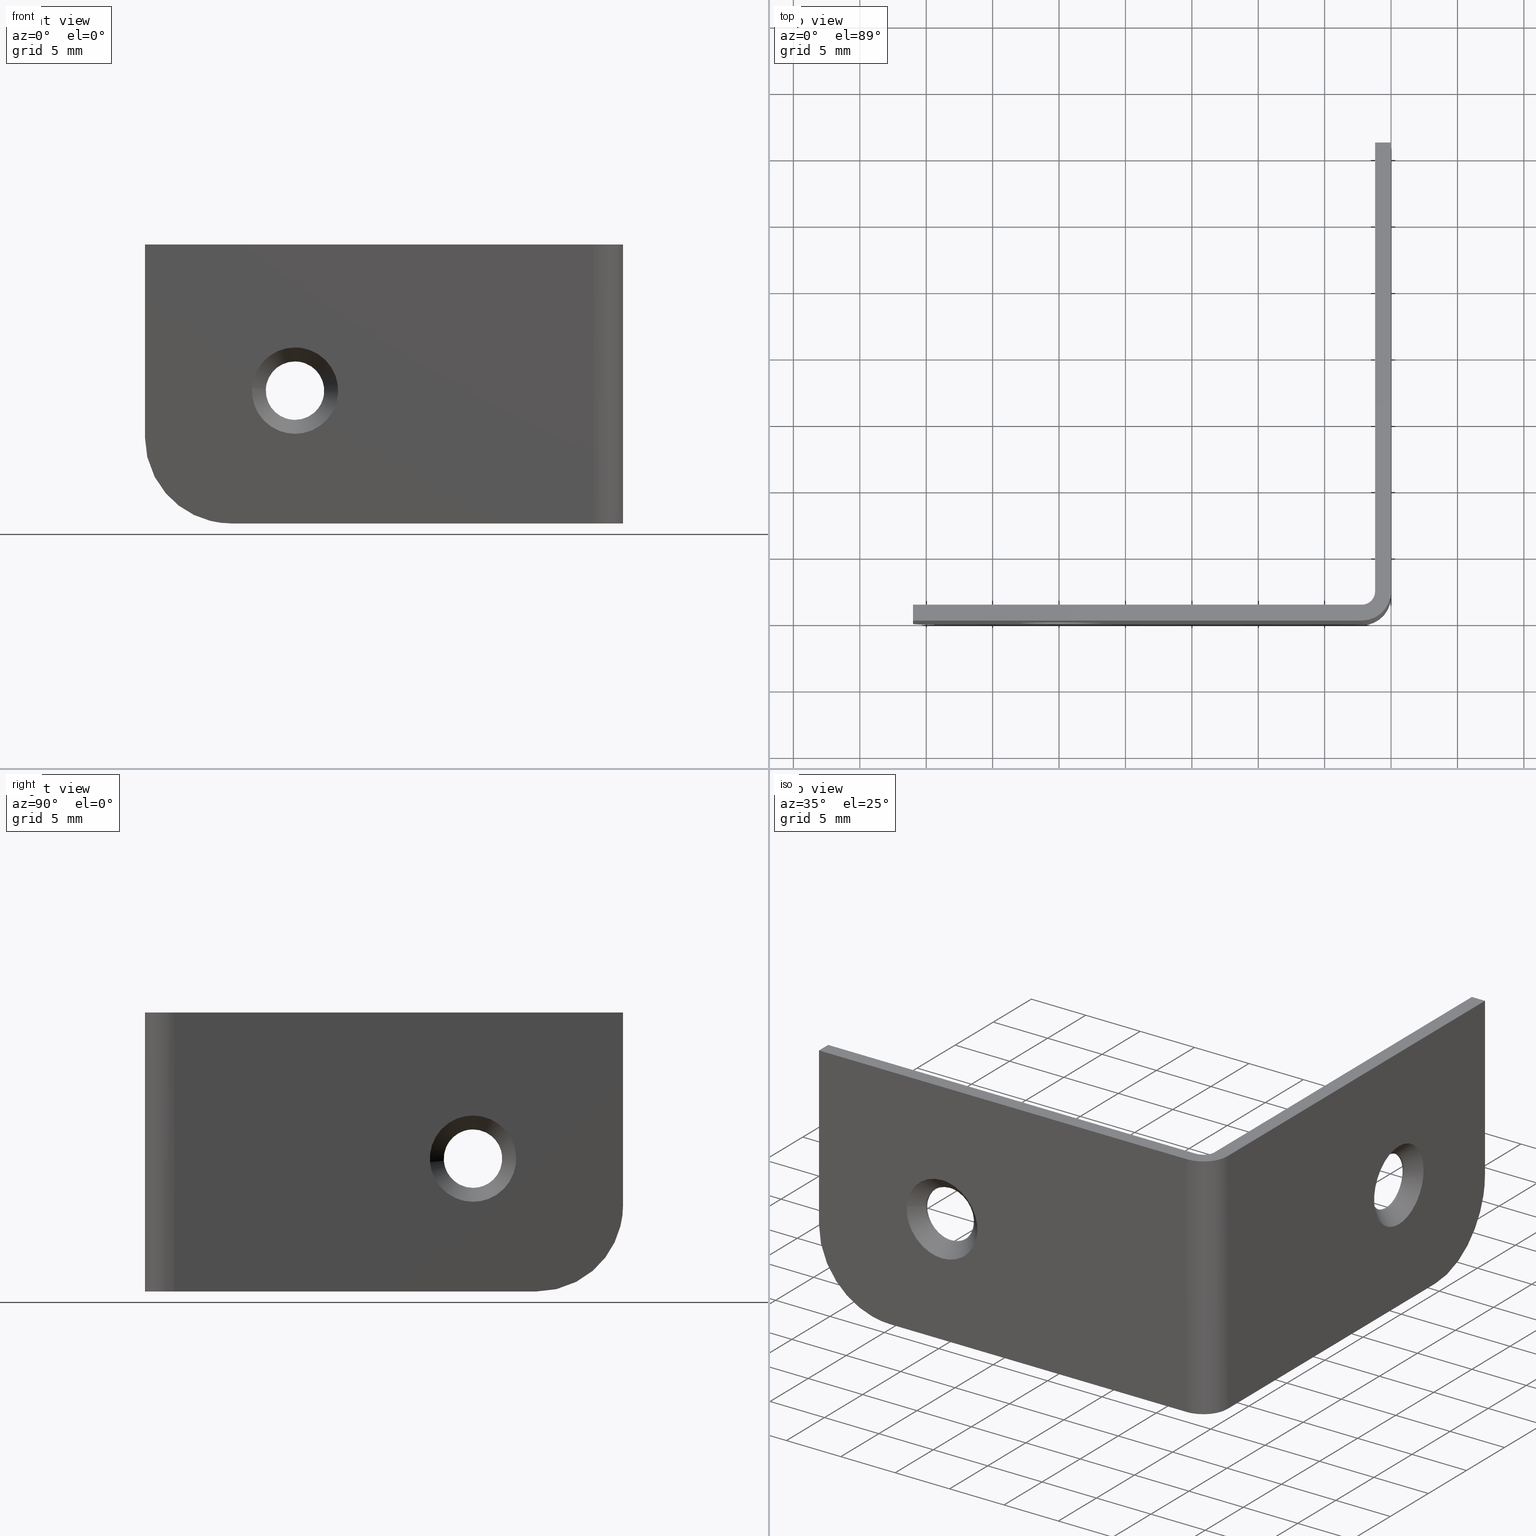
[diagram: canonical four-view strip — front | top / right | iso, engineering-drawing reading convention]
A machine part, canonical four-view strip (front | top / right | iso — engineering-drawing reading convention). The complete STEP part file that produces these views, byte-faithful:
ISO-10303-21;
HEADER;
/****************************************************************
 * Generated by software with PDE/Lib inside                    *
 * PDElib Version 4.4.1-0003, patched  Thursday August 19 11:58 *
 * International Technegroup Inc. (www.iti-oh.com)              *
 ****************************************************************/
FILE_DESCRIPTION((''),'2;1');
FILE_NAME('','2005-12-14T14:49:20',(''),(''),'','CADfix','');
FILE_SCHEMA(('AUTOMOTIVE_DESIGN'));
ENDSEC;
DATA;
#5=APPLICATION_CONTEXT('automotive design');
#6=APPLICATION_PROTOCOL_DEFINITION('Draft International Standard','automotive_design',1998,#5);
#7=PRODUCT_CONTEXT('None',#5,'mechanical');
#8=PRODUCT('angle','','None',(#7));
#9=PRODUCT_RELATED_PRODUCT_CATEGORY('part','description',(#8));
#10=PRODUCT_DEFINITION_FORMATION('None','None',#8);
#11=PRODUCT_DEFINITION_CONTEXT('part definition',#5,'design');
#12=PRODUCT_DEFINITION('None','None',#10,#11);
#18=(NAMED_UNIT(*)PLANE_ANGLE_UNIT()SI_UNIT($,.RADIAN.));
#19=DIMENSIONAL_EXPONENTS(0.0,0.0,0.0,0.0,0.0,0.0,0.0);
#20=PLANE_ANGLE_MEASURE_WITH_UNIT(PLANE_ANGLE_MEASURE(0.017453292500000),#18);
#24=(CONVERSION_BASED_UNIT('DEGREE',#20)NAMED_UNIT(#19)PLANE_ANGLE_UNIT());
#28=(NAMED_UNIT(*)SI_UNIT($,.STERADIAN.)SOLID_ANGLE_UNIT());
#32=(LENGTH_UNIT()NAMED_UNIT(*)SI_UNIT(.MILLI.,.METRE.));
#34=UNCERTAINTY_MEASURE_WITH_UNIT(LENGTH_MEASURE(0.001000000000000),#32,'DISTANCE_ACCURACY_VALUE','');
#36=(GEOMETRIC_REPRESENTATION_CONTEXT(3)GLOBAL_UNCERTAINTY_ASSIGNED_CONTEXT((#34))GLOBAL_UNIT_ASSIGNED_CONTEXT((#24,#28,#32))REPRESENTATION_CONTEXT('None','None'));
#37=AXIS2_PLACEMENT_3D('',#38,#39,#40);
#38=CARTESIAN_POINT('',(0.0,0.0,0.0));
#39=DIRECTION('',(0.0,0.0,1.0));
#40=DIRECTION('',(1.0,0.0,0.0));
#41=ADVANCED_BREP_SHAPE_REPRESENTATION('',(#37,#1169),#36);
#42=PRODUCT_DEFINITION_SHAPE('','',#12);
#43=SHAPE_DEFINITION_REPRESENTATION(#42,#41);
#44=CARTESIAN_POINT('',(-23.916573185250375,1.076250000000000,12.027769130024222));
#45=CARTESIAN_POINT('',(-23.926132929113010,1.076250000000000,12.031359794799236));
#46=CARTESIAN_POINT('',(-24.241361679333632,1.076250000000001,12.149760537094993));
#47=CARTESIAN_POINT('',(-24.567295737186100,1.076250000000000,12.169695518069529));
#48=CARTESIAN_POINT('',(-26.736991255255646,1.076250000000000,12.302399780883428));
#49=CARTESIAN_POINT('',(-26.870257606409876,1.076250000000000,10.123514199684413));
#50=CARTESIAN_POINT('',(-26.870817725879025,1.076250000000000,10.114356327314338));
#51=CARTESIAN_POINT('',(-23.518991960588568,-0.026906249999997,13.056841557554181));
#52=CARTESIAN_POINT('',(-23.533403178259352,-0.026906249999997,13.062254448568758));
#53=CARTESIAN_POINT('',(-24.008607346989706,-0.026906249999997,13.240742376082773));
#54=CARTESIAN_POINT('',(-24.499949659244859,-0.026906249999997,13.270794159291100));
#55=CARTESIAN_POINT('',(-27.770743818535951,-0.026906249999997,13.470844500046242));
#56=CARTESIAN_POINT('',(-27.971641501807728,-0.026906249999997,10.186196413069394));
#57=CARTESIAN_POINT('',(-27.972485876270852,-0.026906249999997,10.172391012629518));
#65=(BOUNDED_SURFACE()B_SPLINE_SURFACE(2,1,((#44,#51),(#45,#52),(#46,#53),(#47,#54),(#48,#55),(#49,#56),(#50,#57)),.UNSPECIFIED.,.F.,.F.,.U.)B_SPLINE_SURFACE_WITH_KNOTS((3,1,2,1,3),(2,2),(0.0,0.032576152790365,1.118447361890489,6.547803407391108,6.580382999732040),(0.0,1.0),.UNSPECIFIED.)GEOMETRIC_REPRESENTATION_ITEM()RATIONAL_B_SPLINE_SURFACE(((0.904165337734979,0.904165337734979),(0.905219753857337,0.905219753857337),(0.941421356237309,0.941421356237309),(1.0,1.0),(0.707106781186548,0.707106781186548),(1.001757545754671,1.001757545754671),(1.003515091509342,1.003515091509342)))REPRESENTATION_ITEM('')SURFACE());
#66=CARTESIAN_POINT('',(-23.926440456328070,1.049999999998959,12.059515873305831));
#67=VERTEX_POINT('',#66);
#68=CARTESIAN_POINT('',(-24.699999999999999,1.050000000000000,12.199999999999999));
#69=VERTEX_POINT('',#68);
#70=CARTESIAN_POINT('',(-23.926440456328081,1.049999999998959,12.059515873305829));
#71=CARTESIAN_POINT('',(-24.300463750641974,1.050000000000000,12.199999999999999));
#72=CARTESIAN_POINT('',(-24.699999999999999,1.050000000000000,12.199999999999999));
#80=(BOUNDED_CURVE()B_SPLINE_CURVE(2,(#70,#71,#72),.UNSPECIFIED.,.F.,.U.)B_SPLINE_CURVE_WITH_KNOTS((3,3),(0.440284170897359,0.500000000000000),.UNSPECIFIED.)CURVE()GEOMETRIC_REPRESENTATION_ITEM()RATIONAL_B_SPLINE_CURVE((0.893499554633869,0.930038554400054,1.0))REPRESENTATION_ITEM(''));
#81=EDGE_CURVE('',#67,#69,#80,.T.);
#82=ORIENTED_EDGE('',*,*,#81,.F.);
#83=CARTESIAN_POINT('',(-23.557241583184549,-4.230380E-012,13.042466631012569));
#84=VERTEX_POINT('',#83);
#85=CARTESIAN_POINT('',(-23.926440456328070,1.049999999998959,12.059515873305831));
#86=CARTESIAN_POINT('',(-23.557241583184549,-4.230380E-012,13.042466631012569));
#87=QUASI_UNIFORM_CURVE('',1,(#85,#86),.UNSPECIFIED.,.F.,.U.);
#88=EDGE_CURVE('',#67,#84,#87,.T.);
#89=ORIENTED_EDGE('',*,*,#88,.T.);
#90=CARTESIAN_POINT('',(-24.699999999999999,3.422775E-015,13.250000000000000));
#91=VERTEX_POINT('',#90);
#92=CARTESIAN_POINT('',(-23.557241583184556,-4.230380E-012,13.042466631012568));
#93=CARTESIAN_POINT('',(-24.109775995237399,3.422775E-015,13.249999999999996));
#94=CARTESIAN_POINT('',(-24.699999999999999,3.422775E-015,13.250000000000000));
#102=(BOUNDED_CURVE()B_SPLINE_CURVE(2,(#92,#93,#94),.UNSPECIFIED.,.F.,.U.)B_SPLINE_CURVE_WITH_KNOTS((3,3),(0.440284170894616,0.500000000000000),.UNSPECIFIED.)CURVE()GEOMETRIC_REPRESENTATION_ITEM()RATIONAL_B_SPLINE_CURVE((0.893499554630512,0.930038554396840,1.0))REPRESENTATION_ITEM(''));
#103=EDGE_CURVE('',#84,#91,#102,.T.);
#104=ORIENTED_EDGE('',*,*,#103,.T.);
#105=CARTESIAN_POINT('',(-27.943938094879609,-1.585975E-011,10.198407753608370));
#106=VERTEX_POINT('',#105);
#107=CARTESIAN_POINT('',(-24.699999999999999,3.422775E-015,13.250000000000000));
#108=CARTESIAN_POINT('',(-27.757294717218581,3.422775E-015,13.250000000000004));
#109=CARTESIAN_POINT('',(-27.943938094879623,-1.585975E-011,10.198407753608365));
#117=(BOUNDED_CURVE()B_SPLINE_CURVE(2,(#107,#108,#109),.UNSPECIFIED.,.F.,.U.)B_SPLINE_CURVE_WITH_KNOTS((3,3),(0.500000000000000,0.739332962229297),.UNSPECIFIED.)CURVE()GEOMETRIC_REPRESENTATION_ITEM()RATIONAL_B_SPLINE_CURVE((1.0,0.719603993298011,0.976072041646045))REPRESENTATION_ITEM(''));
#118=EDGE_CURVE('',#91,#106,#117,.T.);
#119=ORIENTED_EDGE('',*,*,#118,.T.);
#120=CARTESIAN_POINT('',(-26.895896669079072,1.050000007791356,10.134304819130140));
#121=VERTEX_POINT('',#120);
#122=CARTESIAN_POINT('',(-26.895896669079072,1.050000007791356,10.134304819130140));
#123=CARTESIAN_POINT('',(-27.943938094879609,-1.585975E-011,10.198407753608370));
#124=QUASI_UNIFORM_CURVE('',1,(#122,#123),.UNSPECIFIED.,.F.,.U.);
#125=EDGE_CURVE('',#121,#106,#124,.T.);
#126=ORIENTED_EDGE('',*,*,#125,.F.);
#127=CARTESIAN_POINT('',(-24.699999999999999,1.050000000000000,12.199999999999999));
#128=CARTESIAN_POINT('',(-26.769555204834230,1.050000000000000,12.199999999999999));
#129=CARTESIAN_POINT('',(-26.895896669079075,1.050000007791356,10.134304819130143));
#137=(BOUNDED_CURVE()B_SPLINE_CURVE(2,(#127,#128,#129),.UNSPECIFIED.,.F.,.U.)B_SPLINE_CURVE_WITH_KNOTS((3,3),(0.500000000000000,0.739333116831933),.UNSPECIFIED.)CURVE()GEOMETRIC_REPRESENTATION_ITEM()RATIONAL_B_SPLINE_CURVE((1.0,0.719603812169756,0.976072372989148))REPRESENTATION_ITEM(''));
#138=EDGE_CURVE('',#69,#121,#137,.T.);
#139=ORIENTED_EDGE('',*,*,#138,.F.);
#140=EDGE_LOOP('',(#82,#89,#104,#119,#126,#139));
#141=FACE_OUTER_BOUND('',#140,.T.);
#142=ADVANCED_FACE('',(#141),#65,.F.);
#143=CARTESIAN_POINT('',(-26.869695518069530,1.076250000000000,10.132704262813901));
#144=CARTESIAN_POINT('',(-27.002399780883430,1.076250000000000,7.963008744744363));
#145=CARTESIAN_POINT('',(-24.832704262813898,1.076250000000000,7.830304481930467));
#146=CARTESIAN_POINT('',(-22.663008744744371,1.076250000000000,7.697600219116572));
#147=CARTESIAN_POINT('',(-22.530304481930472,1.076250000000000,9.867295737186105));
#148=CARTESIAN_POINT('',(-22.432263086787767,1.076250000000000,11.470258378444411));
#149=CARTESIAN_POINT('',(-23.935670428166322,1.076250000000000,12.034942104365754));
#150=CARTESIAN_POINT('',(-27.970794159291099,-0.026906249999997,10.200050340755141));
#151=CARTESIAN_POINT('',(-28.170844500046236,-0.026906249999997,6.929256181464046));
#152=CARTESIAN_POINT('',(-24.900050340755140,-0.026906249999997,6.729205840708902));
#153=CARTESIAN_POINT('',(-21.629256181464051,-0.026906249999997,6.529155499953758));
#154=CARTESIAN_POINT('',(-21.429205840708899,-0.026906249999997,9.799949659244856));
#155=CARTESIAN_POINT('',(-21.281409424146823,-0.026906249999997,12.216399709920344));
#156=CARTESIAN_POINT('',(-23.547780862103931,-0.026906249999997,13.067654744190587));
#164=(BOUNDED_SURFACE()B_SPLINE_SURFACE(2,1,((#143,#150),(#144,#151),(#145,#152),(#146,#153),(#147,#154),(#148,#155),(#149,#156)),.UNSPECIFIED.,.F.,.F.,.U.)B_SPLINE_SURFACE_WITH_KNOTS((3,2,2,3),(2,2),(0.0,5.429356045500626,10.858712091001250,15.202196927401751),(0.0,1.0),.UNSPECIFIED.)GEOMETRIC_REPRESENTATION_ITEM()RATIONAL_B_SPLINE_SURFACE(((1.0,1.0),(0.707106781186548,0.707106781186548),(1.0,1.0),(0.707106781186548,0.707106781186548),(1.0,1.0),(0.765685424949238,0.765685424949238),(0.906274169979695,0.906274169979695)))REPRESENTATION_ITEM('')SURFACE());
#165=CARTESIAN_POINT('',(-22.515379042008451,1.050000000000000,9.740324683683475));
#166=VERTEX_POINT('',#165);
#167=CARTESIAN_POINT('',(-22.515379042008451,1.050000000000001,9.740324683683475));
#168=CARTESIAN_POINT('',(-22.500000000000000,1.050000000000000,9.869706936693387));
#169=CARTESIAN_POINT('',(-22.500000000000000,1.050000000000000,10.0));
#170=CARTESIAN_POINT('',(-22.500000000000000,1.050000000000000,11.523741110511752));
#171=CARTESIAN_POINT('',(-23.926440456328081,1.049999999998959,12.059515873305829));
#179=(BOUNDED_CURVE()B_SPLINE_CURVE(2,(#167,#168,#169,#170,#171),.UNSPECIFIED.,.F.,.U.)B_SPLINE_CURVE_WITH_KNOTS((3,2,3),(0.229562473504558,0.250000000000000,0.440284170897359),.UNSPECIFIED.)CURVE()GEOMETRIC_REPRESENTATION_ITEM()RATIONAL_B_SPLINE_CURVE((0.956026754166156,0.976055948320659,1.0,0.777068226786493,0.893499554633869))REPRESENTATION_ITEM(''));
#180=EDGE_CURVE('',#166,#67,#179,.T.);
#181=ORIENTED_EDGE('',*,*,#180,.F.);
#182=CARTESIAN_POINT('',(-24.699999999999999,1.050000000000000,7.800000000000000));
#183=VERTEX_POINT('',#182);
#184=CARTESIAN_POINT('',(-24.699999999999999,1.050000000000000,7.800000000000000));
#185=CARTESIAN_POINT('',(-22.746016043036068,1.050000000000000,7.799999999999999));
#186=CARTESIAN_POINT('',(-22.515379042008448,1.050000000000000,9.740324683683475));
#194=(BOUNDED_CURVE()B_SPLINE_CURVE(2,(#184,#185,#186),.UNSPECIFIED.,.F.,.U.)B_SPLINE_CURVE_WITH_KNOTS((3,3),(0.0,0.229562473504558),.UNSPECIFIED.)CURVE()GEOMETRIC_REPRESENTATION_ITEM()RATIONAL_B_SPLINE_CURVE((1.0,0.731050832865889,0.956026754166156))REPRESENTATION_ITEM(''));
#195=EDGE_CURVE('',#183,#166,#194,.T.);
#196=ORIENTED_EDGE('',*,*,#195,.F.);
#197=CARTESIAN_POINT('',(-26.895896669079075,1.050000007791356,10.134304819130143));
#198=CARTESIAN_POINT('',(-26.900000000000002,1.050000000000000,10.067215092813356));
#199=CARTESIAN_POINT('',(-26.899999999999999,1.050000000000000,10.0));
#200=CARTESIAN_POINT('',(-26.900000000000002,1.050000000000000,7.800000000000001));
#201=CARTESIAN_POINT('',(-24.699999999999999,1.050000000000000,7.800000000000000));
#209=(BOUNDED_CURVE()B_SPLINE_CURVE(2,(#197,#198,#199,#200,#201),.UNSPECIFIED.,.F.,.U.)B_SPLINE_CURVE_WITH_KNOTS((3,2,3),(0.739333116831933,0.750000000000000,1.0),.UNSPECIFIED.)CURVE()GEOMETRIC_REPRESENTATION_ITEM()RATIONAL_B_SPLINE_CURVE((0.976072372989148,0.987502969016792,1.0,0.707106781186548,1.0))REPRESENTATION_ITEM(''));
#210=EDGE_CURVE('',#121,#183,#209,.T.);
#211=ORIENTED_EDGE('',*,*,#210,.F.);
#212=ORIENTED_EDGE('',*,*,#125,.T.);
#213=CARTESIAN_POINT('',(-24.699999999999999,3.422775E-015,6.750000000000001));
#214=VERTEX_POINT('',#213);
#215=CARTESIAN_POINT('',(-27.943938094879609,-1.585975E-011,10.198407753608365));
#216=CARTESIAN_POINT('',(-27.950000000000003,3.422775E-015,10.099296480839859));
#217=CARTESIAN_POINT('',(-27.949999999999999,3.422775E-015,10.0));
#218=CARTESIAN_POINT('',(-27.949999999999999,3.422775E-015,6.750000000000001));
#219=CARTESIAN_POINT('',(-24.699999999999999,3.422775E-015,6.750000000000001));
#227=(BOUNDED_CURVE()B_SPLINE_CURVE(2,(#215,#216,#217,#218,#219),.UNSPECIFIED.,.F.,.U.)B_SPLINE_CURVE_WITH_KNOTS((3,2,3),(0.739332962229297,0.750000000000000,1.0),.UNSPECIFIED.)CURVE()GEOMETRIC_REPRESENTATION_ITEM()RATIONAL_B_SPLINE_CURVE((0.976072041646045,0.987502787888537,1.0,0.707106781186547,1.0))REPRESENTATION_ITEM(''));
#228=EDGE_CURVE('',#106,#214,#227,.T.);
#229=ORIENTED_EDGE('',*,*,#228,.T.);
#230=CARTESIAN_POINT('',(-24.699999999999999,3.422775E-015,6.750000000000001));
#231=CARTESIAN_POINT('',(-21.449999999999996,3.422775E-015,6.750000000000001));
#232=CARTESIAN_POINT('',(-21.449999999999999,3.422775E-015,10.0));
#233=CARTESIAN_POINT('',(-21.449999999999992,3.422775E-015,12.250981185941505));
#234=CARTESIAN_POINT('',(-23.557241583184549,-4.230380E-012,13.042466631012569));
#242=(BOUNDED_CURVE()B_SPLINE_CURVE(2,(#230,#231,#232,#233,#234),.UNSPECIFIED.,.F.,.U.)B_SPLINE_CURVE_WITH_KNOTS((3,2,3),(0.0,0.250000000000000,0.440284170894616),.UNSPECIFIED.)CURVE()GEOMETRIC_REPRESENTATION_ITEM()RATIONAL_B_SPLINE_CURVE((1.0,0.707106781186547,1.0,0.777068226789707,0.893499554630512))REPRESENTATION_ITEM(''));
#243=EDGE_CURVE('',#214,#84,#242,.T.);
#244=ORIENTED_EDGE('',*,*,#243,.T.);
#245=ORIENTED_EDGE('',*,*,#88,.F.);
#246=EDGE_LOOP('',(#181,#196,#211,#212,#229,#244,#245));
#247=FACE_OUTER_BOUND('',#246,.T.);
#248=ADVANCED_FACE('',(#247),#164,.F.);
#249=CARTESIAN_POINT('',(-22.519232724305489,1.203749999999902,9.707904062296297));
#250=CARTESIAN_POINT('',(-22.517300450061526,1.203749999999902,9.724160081047016));
#251=CARTESIAN_POINT('',(-22.507947246013067,1.203749999999902,9.802847596996450));
#252=CARTESIAN_POINT('',(-22.504103443471891,1.203749999999902,9.865693213023315));
#253=CARTESIAN_POINT('',(-22.369796656495208,1.203749999999902,12.061589769551421));
#254=CARTESIAN_POINT('',(-24.565693213023309,1.203749999999902,12.195896556528110));
#255=CARTESIAN_POINT('',(-26.761589769551424,1.203749999999902,12.330203343504794));
#256=CARTESIAN_POINT('',(-26.896862475799672,1.203749999999902,10.118514146485049));
#257=CARTESIAN_POINT('',(-26.897822657260985,1.203749999999902,10.102815318361886));
#258=CARTESIAN_POINT('',(-22.519232724305489,1.046156250000003,9.707904062296297));
#259=CARTESIAN_POINT('',(-22.517300450061526,1.046156250000003,9.724160081047016));
#260=CARTESIAN_POINT('',(-22.507947246013067,1.046156250000003,9.802847596996450));
#261=CARTESIAN_POINT('',(-22.504103443471891,1.046156250000002,9.865693213023315));
#262=CARTESIAN_POINT('',(-22.369796656495208,1.046156250000002,12.061589769551421));
#263=CARTESIAN_POINT('',(-24.565693213023309,1.046156250000002,12.195896556528110));
#264=CARTESIAN_POINT('',(-26.761589769551424,1.046156250000002,12.330203343504794));
#265=CARTESIAN_POINT('',(-26.896862475799672,1.046156250000003,10.118514146485049));
#266=CARTESIAN_POINT('',(-26.897822657260985,1.046156250000003,10.102815318361886));
#274=(BOUNDED_SURFACE()B_SPLINE_SURFACE(2,1,((#249,#258),(#250,#259),(#251,#260),(#252,#261),(#253,#262),(#254,#263),(#255,#264),(#256,#265),(#257,#266)),.UNSPECIFIED.,.F.,.F.,.U.)B_SPLINE_SURFACE_WITH_KNOTS((3,1,2,2,1,3),(2,2),(0.0,0.037179831352436,0.182983005307766,3.828062354191004,7.473141703074242,7.510326082704888),(0.0,0.157593749999900),.UNSPECIFIED.)GEOMETRIC_REPRESENTATION_ITEM()RATIONAL_B_SPLINE_SURFACE(((0.972008777612657,0.972008777612657),(0.974757289203892,0.974757289203892),(0.988284271247462,0.988284271247462),(1.0,1.0),(0.707106781186548,0.707106781186548),(1.0,1.0),(0.707106781186548,0.707106781186548),(1.002987878067164,1.002987878067164),(1.005975756134328,1.005975756134328)))REPRESENTATION_ITEM('')SURFACE());
#275=ORIENTED_EDGE('',*,*,#180,.T.);
#276=ORIENTED_EDGE('',*,*,#81,.T.);
#277=ORIENTED_EDGE('',*,*,#138,.T.);
#278=CARTESIAN_POINT('',(-26.895896793528099,1.199999999999904,10.134302911948890));
#279=VERTEX_POINT('',#278);
#280=CARTESIAN_POINT('',(-26.895896793528099,1.199999999999904,10.134302911948890));
#281=CARTESIAN_POINT('',(-26.895896669079072,1.050000007791356,10.134304819130140));
#282=QUASI_UNIFORM_CURVE('',1,(#280,#281),.UNSPECIFIED.,.F.,.U.);
#283=EDGE_CURVE('',#279,#121,#282,.T.);
#284=ORIENTED_EDGE('',*,*,#283,.F.);
#285=CARTESIAN_POINT('',(-24.699999999999999,1.199999999999904,12.199999999999999));
#286=VERTEX_POINT('',#285);
#287=CARTESIAN_POINT('',(-24.699999999999999,1.199999999999904,12.199999999999999));
#288=CARTESIAN_POINT('',(-26.769557006093766,1.199999999999904,12.199999999999999));
#289=CARTESIAN_POINT('',(-26.895896793528095,1.199999999999904,10.134302911948893));
#297=(BOUNDED_CURVE()B_SPLINE_CURVE(2,(#287,#288,#289),.UNSPECIFIED.,.F.,.U.)B_SPLINE_CURVE_WITH_KNOTS((3,3),(0.500000000000000,0.739333266729789),.UNSPECIFIED.)CURVE()GEOMETRIC_REPRESENTATION_ITEM()RATIONAL_B_SPLINE_CURVE((1.0,0.719603636553494,0.976072694249432))REPRESENTATION_ITEM(''));
#298=EDGE_CURVE('',#286,#279,#297,.T.);
#299=ORIENTED_EDGE('',*,*,#298,.F.);
#300=CARTESIAN_POINT('',(-22.515379042008451,1.199999999999904,9.740324683683475));
#301=VERTEX_POINT('',#300);
#302=CARTESIAN_POINT('',(-22.515379042008451,1.199999999999904,9.740324683683475));
#303=CARTESIAN_POINT('',(-22.500000000000000,1.199999999999904,9.869706936693387));
#304=CARTESIAN_POINT('',(-22.500000000000000,1.199999999999904,10.0));
#305=CARTESIAN_POINT('',(-22.500000000000000,1.199999999999904,12.200000000000001));
#306=CARTESIAN_POINT('',(-24.699999999999999,1.199999999999904,12.199999999999999));
#314=(BOUNDED_CURVE()B_SPLINE_CURVE(2,(#302,#303,#304,#305,#306),.UNSPECIFIED.,.F.,.U.)B_SPLINE_CURVE_WITH_KNOTS((3,2,3),(0.229562473504558,0.250000000000000,0.500000000000000),.UNSPECIFIED.)CURVE()GEOMETRIC_REPRESENTATION_ITEM()RATIONAL_B_SPLINE_CURVE((0.956026754166156,0.976055948320659,1.0,0.707106781186548,1.0))REPRESENTATION_ITEM(''));
#315=EDGE_CURVE('',#301,#286,#314,.T.);
#316=ORIENTED_EDGE('',*,*,#315,.F.);
#317=CARTESIAN_POINT('',(-22.515379042008451,1.199999999999904,9.740324683683475));
#318=CARTESIAN_POINT('',(-22.515379042008451,1.050000000000000,9.740324683683475));
#319=QUASI_UNIFORM_CURVE('',1,(#317,#318),.UNSPECIFIED.,.F.,.U.);
#320=EDGE_CURVE('',#301,#166,#319,.T.);
#321=ORIENTED_EDGE('',*,*,#320,.T.);
#322=EDGE_LOOP('',(#275,#276,#277,#284,#299,#316,#321));
#323=FACE_OUTER_BOUND('',#322,.T.);
#324=ADVANCED_FACE('',(#323),#274,.F.);
#325=CARTESIAN_POINT('',(-26.895896556528111,1.203749999999902,10.134306786976691));
#326=CARTESIAN_POINT('',(-27.030203343504791,1.203749999999902,7.938410230448580));
#327=CARTESIAN_POINT('',(-24.834306786976690,1.203749999999902,7.804103443471893));
#328=CARTESIAN_POINT('',(-22.760604320153089,1.203749999999902,7.677270367188442));
#329=CARTESIAN_POINT('',(-22.515379041999935,1.203749999999902,9.740324683755134));
#330=CARTESIAN_POINT('',(-26.895896556528111,1.046156250000002,10.134306786976691));
#331=CARTESIAN_POINT('',(-27.030203343504791,1.046156250000002,7.938410230448580));
#332=CARTESIAN_POINT('',(-24.834306786976690,1.046156250000002,7.804103443471893));
#333=CARTESIAN_POINT('',(-22.760604320153089,1.046156250000002,7.677270367188442));
#334=CARTESIAN_POINT('',(-22.515379041999935,1.046156250000002,9.740324683755134));
#342=(BOUNDED_SURFACE()B_SPLINE_SURFACE(2,1,((#325,#330),(#326,#331),(#327,#332),(#328,#333),(#329,#334)),.UNSPECIFIED.,.F.,.F.,.U.)B_SPLINE_SURFACE_WITH_KNOTS((3,2,3),(2,2),(0.0,3.645079348883238,7.144355523811147),(0.0,0.157593749999900),.UNSPECIFIED.)GEOMETRIC_REPRESENTATION_ITEM()RATIONAL_B_SPLINE_SURFACE(((1.0,1.0),(0.707106781186548,0.707106781186548),(1.0,1.0),(0.718822509939086,0.718822509939086),(0.977505800795127,0.977505800795127)))REPRESENTATION_ITEM('')SURFACE());
#343=ORIENTED_EDGE('',*,*,#195,.T.);
#344=ORIENTED_EDGE('',*,*,#320,.F.);
#345=CARTESIAN_POINT('',(-24.699999999999999,1.199999999999904,7.800000000000000));
#346=VERTEX_POINT('',#345);
#347=CARTESIAN_POINT('',(-24.699999999999999,1.199999999999904,7.800000000000000));
#348=CARTESIAN_POINT('',(-22.746016043036068,1.199999999999904,7.799999999999999));
#349=CARTESIAN_POINT('',(-22.515379042008448,1.199999999999904,9.740324683683475));
#357=(BOUNDED_CURVE()B_SPLINE_CURVE(2,(#347,#348,#349),.UNSPECIFIED.,.F.,.U.)B_SPLINE_CURVE_WITH_KNOTS((3,3),(0.0,0.229562473504558),.UNSPECIFIED.)CURVE()GEOMETRIC_REPRESENTATION_ITEM()RATIONAL_B_SPLINE_CURVE((1.0,0.731050832865889,0.956026754166156))REPRESENTATION_ITEM(''));
#358=EDGE_CURVE('',#346,#301,#357,.T.);
#359=ORIENTED_EDGE('',*,*,#358,.F.);
#360=CARTESIAN_POINT('',(-26.895896793528095,1.199999999999904,10.134302911948893));
#361=CARTESIAN_POINT('',(-26.899999999999991,1.199999999999904,10.067214136310660));
#362=CARTESIAN_POINT('',(-26.899999999999999,1.199999999999904,10.0));
#363=CARTESIAN_POINT('',(-26.900000000000002,1.199999999999904,7.800000000000001));
#364=CARTESIAN_POINT('',(-24.699999999999999,1.199999999999904,7.800000000000000));
#372=(BOUNDED_CURVE()B_SPLINE_CURVE(2,(#360,#361,#362,#363,#364),.UNSPECIFIED.,.F.,.U.)B_SPLINE_CURVE_WITH_KNOTS((3,2,3),(0.739333266729789,0.750000000000000,1.0),.UNSPECIFIED.)CURVE()GEOMETRIC_REPRESENTATION_ITEM()RATIONAL_B_SPLINE_CURVE((0.976072694249432,0.987503144633054,1.0,0.707106781186548,1.0))REPRESENTATION_ITEM(''));
#373=EDGE_CURVE('',#279,#346,#372,.T.);
#374=ORIENTED_EDGE('',*,*,#373,.F.);
#375=ORIENTED_EDGE('',*,*,#283,.T.);
#376=ORIENTED_EDGE('',*,*,#210,.T.);
#377=EDGE_LOOP('',(#343,#344,#359,#374,#375,#376));
#378=FACE_OUTER_BOUND('',#377,.T.);
#379=ADVANCED_FACE('',(#378),#342,.F.);
#380=CARTESIAN_POINT('',(-1.076250000000000,25.869153162253689,8.167441693781010));
#381=CARTESIAN_POINT('',(-1.076250000000000,26.969450257098750,8.869419810106722));
#382=CARTESIAN_POINT('',(-1.076250000000000,26.867049054202390,10.170550459338401));
#383=CARTESIAN_POINT('',(-1.076250000000000,26.696498594863982,12.337599513540791));
#384=CARTESIAN_POINT('',(-1.076250000000000,24.529449540661599,12.167049054202391));
#385=CARTESIAN_POINT('',(-1.076250000000000,22.362400486459212,11.996498594863985));
#386=CARTESIAN_POINT('',(-1.076250000000000,22.532950945797609,9.829449540661596));
#387=CARTESIAN_POINT('',(0.026906249999996,26.462486626611316,7.237436794875944));
#388=CARTESIAN_POINT('',(0.026906249999996,28.121173424520290,8.295661741052349));
#389=CARTESIAN_POINT('',(0.026906249999996,27.966804641643421,10.257103101159929));
#390=CARTESIAN_POINT('',(0.026906249999996,27.709701540483490,13.523907742803345));
#391=CARTESIAN_POINT('',(0.026906249999996,24.442896898840079,13.266804641643420));
#392=CARTESIAN_POINT('',(0.026906249999996,21.176092257196657,13.009701540483496));
#393=CARTESIAN_POINT('',(0.026906249999996,21.433195358356581,9.742896898840074));
#401=(BOUNDED_SURFACE()B_SPLINE_SURFACE(2,1,((#380,#387),(#381,#388),(#382,#389),(#383,#390),(#384,#391),(#385,#392),(#386,#393)),.UNSPECIFIED.,.F.,.F.,.U.)B_SPLINE_SURFACE_WITH_KNOTS((3,2,2,3),(2,2),(0.0,3.691962110940434,9.121318156441072,14.550674201941710),(0.0,1.0),.UNSPECIFIED.)GEOMETRIC_REPRESENTATION_ITEM()RATIONAL_B_SPLINE_SURFACE(((0.872532871172386,0.872532871172386),(0.800832611206852,0.800832611206852),(1.0,1.0),(0.707106781186548,0.707106781186548),(1.0,1.0),(0.707106781186548,0.707106781186548),(1.0,1.0)))REPRESENTATION_ITEM('')SURFACE());
#402=CARTESIAN_POINT('',(-1.050000000000000,26.884620957991551,10.259675316316530));
#403=VERTEX_POINT('',#402);
#404=CARTESIAN_POINT('',(-1.049999999998008,25.883271745613801,8.145311892516467));
#405=VERTEX_POINT('',#404);
#406=CARTESIAN_POINT('',(-1.049999999999999,26.884620957991551,10.259675316316525));
#407=CARTESIAN_POINT('',(-1.050000000000000,26.899999999999999,10.130293063306613));
#408=CARTESIAN_POINT('',(-1.050000000000000,26.899999999999999,10.0));
#409=CARTESIAN_POINT('',(-1.050000000000000,26.899999999999999,8.793973956815577));
#410=CARTESIAN_POINT('',(-1.049999999998008,25.883271745613801,8.145311892516467));
#418=(BOUNDED_CURVE()B_SPLINE_CURVE(2,(#406,#407,#408,#409,#410),.UNSPECIFIED.,.F.,.U.)B_SPLINE_CURVE_WITH_KNOTS((3,2,3),(0.229562473504558,0.250000000000000,0.407950112622453),.UNSPECIFIED.)CURVE()GEOMETRIC_REPRESENTATION_ITEM()RATIONAL_B_SPLINE_CURVE((0.956026754166156,0.976055948320659,1.0,0.814949932408250,0.863729296951775))REPRESENTATION_ITEM(''));
#419=EDGE_CURVE('',#403,#405,#418,.T.);
#420=ORIENTED_EDGE('',*,*,#419,.T.);
#421=CARTESIAN_POINT('',(2.692800E-012,26.448015078745200,7.260119841216241));
#422=VERTEX_POINT('',#421);
#423=CARTESIAN_POINT('',(-1.049999999998008,25.883271745613801,8.145311892516467));
#424=CARTESIAN_POINT('',(2.692800E-012,26.448015078745200,7.260119841216241));
#425=QUASI_UNIFORM_CURVE('',1,(#423,#424),.UNSPECIFIED.,.F.,.U.);
#426=EDGE_CURVE('',#405,#422,#425,.T.);
#427=ORIENTED_EDGE('',*,*,#426,.T.);
#428=CARTESIAN_POINT('',(-3.940171E-015,24.699999999999999,13.250000000000000));
#429=VERTEX_POINT('',#428);
#430=CARTESIAN_POINT('',(-3.940171E-015,24.699999999999999,13.250000000000000));
#431=CARTESIAN_POINT('',(-3.940171E-015,27.949999999999999,13.250000000000004));
#432=CARTESIAN_POINT('',(-3.940171E-015,27.949999999999999,10.0));
#433=CARTESIAN_POINT('',(-3.940171E-015,27.949999999999999,8.218370618019433));
#434=CARTESIAN_POINT('',(2.692800E-012,26.448015078745197,7.260119841216241));
#442=(BOUNDED_CURVE()B_SPLINE_CURVE(2,(#430,#431,#432,#433,#434),.UNSPECIFIED.,.F.,.U.)B_SPLINE_CURVE_WITH_KNOTS((3,2,3),(0.0,0.250000000000000,0.407950112622711),.UNSPECIFIED.)CURVE()GEOMETRIC_REPRESENTATION_ITEM()RATIONAL_B_SPLINE_CURVE((1.0,0.707106781186547,1.0,0.814949932407947,0.863729296951935))REPRESENTATION_ITEM(''));
#443=EDGE_CURVE('',#429,#422,#442,.T.);
#444=ORIENTED_EDGE('',*,*,#443,.F.);
#445=CARTESIAN_POINT('',(1.813427E-012,21.460018665366619,9.745007938870440));
#446=VERTEX_POINT('',#445);
#447=CARTESIAN_POINT('',(1.813427E-012,21.460018665366622,9.745007938870440));
#448=CARTESIAN_POINT('',(-3.940171E-015,21.450000000000003,9.872307152211089));
#449=CARTESIAN_POINT('',(-3.940171E-015,21.449999999999999,10.0));
#450=CARTESIAN_POINT('',(-3.940171E-015,21.449999999999996,13.250000000000004));
#451=CARTESIAN_POINT('',(-3.940171E-015,24.699999999999999,13.250000000000000));
#459=(BOUNDED_CURVE()B_SPLINE_CURVE(2,(#447,#448,#449,#450,#451),.UNSPECIFIED.,.F.,.U.)B_SPLINE_CURVE_WITH_KNOTS((3,2,3),(0.736331300631294,0.750000000000000,1.0),.UNSPECIFIED.)CURVE()GEOMETRIC_REPRESENTATION_ITEM()RATIONAL_B_SPLINE_CURVE((0.969723356168742,0.983986122579625,1.0,0.707106781186547,1.0))REPRESENTATION_ITEM(''));
#460=EDGE_CURVE('',#446,#429,#459,.T.);
#461=ORIENTED_EDGE('',*,*,#460,.F.);
#462=CARTESIAN_POINT('',(-1.049999999995188,22.506781865785229,9.827389989361441));
#463=VERTEX_POINT('',#462);
#464=CARTESIAN_POINT('',(-1.049999999995188,22.506781865785229,9.827389989361441));
#465=CARTESIAN_POINT('',(1.813427E-012,21.460018665366619,9.745007938870440));
#466=QUASI_UNIFORM_CURVE('',1,(#464,#465),.UNSPECIFIED.,.F.,.U.);
#467=EDGE_CURVE('',#463,#446,#466,.T.);
#468=ORIENTED_EDGE('',*,*,#467,.F.);
#469=CARTESIAN_POINT('',(-1.049999999998302,22.504103203574498,9.865697135425890));
#470=VERTEX_POINT('',#469);
#471=CARTESIAN_POINT('',(-1.049999999995187,22.506781865785232,9.827389989361441));
#472=CARTESIAN_POINT('',(-1.050000000000000,22.505275366874145,9.846531873013456));
#473=CARTESIAN_POINT('',(-1.049999999998302,22.504103203574498,9.865697135425890));
#481=(BOUNDED_CURVE()B_SPLINE_CURVE(2,(#471,#472,#473),.UNSPECIFIED.,.F.,.U.)B_SPLINE_CURVE_WITH_KNOTS((3,3),(0.736331300626995,0.739333270452356),.UNSPECIFIED.)CURVE()GEOMETRIC_REPRESENTATION_ITEM()RATIONAL_B_SPLINE_CURVE((0.969723356159770,0.972855797164948,0.976072702227622))REPRESENTATION_ITEM(''));
#482=EDGE_CURVE('',#463,#470,#481,.T.);
#483=ORIENTED_EDGE('',*,*,#482,.T.);
#484=CARTESIAN_POINT('',(-1.050000000000000,24.699999999999999,12.199999999999999));
#485=VERTEX_POINT('',#484);
#486=CARTESIAN_POINT('',(-1.049999999998302,22.504103203574498,9.865697135425890));
#487=CARTESIAN_POINT('',(-1.050000000000000,22.499999999999996,9.932785887443142));
#488=CARTESIAN_POINT('',(-1.050000000000000,22.500000000000000,10.0));
#489=CARTESIAN_POINT('',(-1.050000000000000,22.500000000000000,12.200000000000001));
#490=CARTESIAN_POINT('',(-1.050000000000000,24.699999999999999,12.199999999999999));
#498=(BOUNDED_CURVE()B_SPLINE_CURVE(2,(#486,#487,#488,#489,#490),.UNSPECIFIED.,.F.,.U.)B_SPLINE_CURVE_WITH_KNOTS((3,2,3),(0.739333270452356,0.750000000000000,1.0),.UNSPECIFIED.)CURVE()GEOMETRIC_REPRESENTATION_ITEM()RATIONAL_B_SPLINE_CURVE((0.976072702227622,0.987503148994312,1.0,0.707106781186548,1.0))REPRESENTATION_ITEM(''));
#499=EDGE_CURVE('',#470,#485,#498,.T.);
#500=ORIENTED_EDGE('',*,*,#499,.T.);
#501=CARTESIAN_POINT('',(-1.050000000000000,24.699999999999999,12.199999999999999));
#502=CARTESIAN_POINT('',(-1.050000000000000,26.653983956963931,12.199999999999998));
#503=CARTESIAN_POINT('',(-1.050000000000000,26.884620957991547,10.259675316316525));
#511=(BOUNDED_CURVE()B_SPLINE_CURVE(2,(#501,#502,#503),.UNSPECIFIED.,.F.,.U.)B_SPLINE_CURVE_WITH_KNOTS((3,3),(0.0,0.229562473504558),.UNSPECIFIED.)CURVE()GEOMETRIC_REPRESENTATION_ITEM()RATIONAL_B_SPLINE_CURVE((1.0,0.731050832865889,0.956026754166156))REPRESENTATION_ITEM(''));
#512=EDGE_CURVE('',#485,#403,#511,.T.);
#513=ORIENTED_EDGE('',*,*,#512,.T.);
#514=EDGE_LOOP('',(#420,#427,#444,#461,#468,#483,#500,#513));
#515=FACE_OUTER_BOUND('',#514,.T.);
#516=ADVANCED_FACE('',(#515),#401,.F.);
#517=CARTESIAN_POINT('',(-1.076250000000000,22.532950945797609,9.829449540661596));
#518=CARTESIAN_POINT('',(-1.076250000000000,22.703501405136020,7.662400486459209));
#519=CARTESIAN_POINT('',(-1.076250000000000,24.870550459338400,7.832950945797611));
#520=CARTESIAN_POINT('',(-1.076250000000000,25.411608830290227,7.875533163083267));
#521=CARTESIAN_POINT('',(-1.076250000000000,25.869153162253689,8.167441693781010));
#522=CARTESIAN_POINT('',(0.026906249999996,21.433195358356581,9.742896898840074));
#523=CARTESIAN_POINT('',(0.026906249999996,21.690298459516494,6.476092257196653));
#524=CARTESIAN_POINT('',(0.026906249999996,24.957103101159920,6.733195358356579));
#525=CARTESIAN_POINT('',(0.026906249999996,25.772743150561581,6.797387622399005));
#526=CARTESIAN_POINT('',(0.026906249999996,26.462486626611316,7.237436794875944));
#534=(BOUNDED_SURFACE()B_SPLINE_SURFACE(2,1,((#517,#522),(#518,#523),(#519,#524),(#520,#525),(#521,#526)),.UNSPECIFIED.,.F.,.F.,.U.)B_SPLINE_SURFACE_WITH_KNOTS((3,2,3),(2,2),(0.0,5.429356045500637,7.166749980060842),(0.0,1.0),.UNSPECIFIED.)GEOMETRIC_REPRESENTATION_ITEM()RATIONAL_B_SPLINE_SURFACE(((1.0,1.0),(0.707106781186548,0.707106781186548),(1.0,1.0),(0.906274169979695,0.906274169979695),(0.872532871172386,0.872532871172386)))REPRESENTATION_ITEM('')SURFACE());
#535=CARTESIAN_POINT('',(-1.050000000000000,24.699999999999999,7.800000000000000));
#536=VERTEX_POINT('',#535);
#537=CARTESIAN_POINT('',(-1.049999999998008,25.883271745613794,8.145311892516467));
#538=CARTESIAN_POINT('',(-1.050000000000000,25.342021721874392,7.800000000000001));
#539=CARTESIAN_POINT('',(-1.050000000000000,24.699999999999999,7.800000000000000));
#547=(BOUNDED_CURVE()B_SPLINE_CURVE(2,(#537,#538,#539),.UNSPECIFIED.,.F.,.U.)B_SPLINE_CURVE_WITH_KNOTS((3,3),(0.407950112622453,0.500000000000000),.UNSPECIFIED.)CURVE()GEOMETRIC_REPRESENTATION_ITEM()RATIONAL_B_SPLINE_CURVE((0.863729296951775,0.892156848778297,1.0))REPRESENTATION_ITEM(''));
#548=EDGE_CURVE('',#405,#536,#547,.T.);
#549=ORIENTED_EDGE('',*,*,#548,.T.);
#550=CARTESIAN_POINT('',(-1.050000000000000,24.699999999999999,7.800000000000000));
#551=CARTESIAN_POINT('',(-1.050000000000000,22.666340918420630,7.799999999999999));
#552=CARTESIAN_POINT('',(-1.049999999995187,22.506781865785221,9.827389989361441));
#560=(BOUNDED_CURVE()B_SPLINE_CURVE(2,(#550,#551,#552),.UNSPECIFIED.,.F.,.U.)B_SPLINE_CURVE_WITH_KNOTS((3,3),(0.500000000000000,0.736331300626995),.UNSPECIFIED.)CURVE()GEOMETRIC_REPRESENTATION_ITEM()RATIONAL_B_SPLINE_CURVE((1.0,0.723120658611959,0.969723356159770))REPRESENTATION_ITEM(''));
#561=EDGE_CURVE('',#536,#463,#560,.T.);
#562=ORIENTED_EDGE('',*,*,#561,.T.);
#563=ORIENTED_EDGE('',*,*,#467,.T.);
#564=CARTESIAN_POINT('',(-3.940171E-015,24.699999999999999,6.750000000000001));
#565=VERTEX_POINT('',#564);
#566=CARTESIAN_POINT('',(-3.940171E-015,24.699999999999999,6.750000000000001));
#567=CARTESIAN_POINT('',(-3.940171E-015,21.695730902136713,6.750000000000001));
#568=CARTESIAN_POINT('',(1.813427E-012,21.460018665366622,9.745007938870440));
#576=(BOUNDED_CURVE()B_SPLINE_CURVE(2,(#566,#567,#568),.UNSPECIFIED.,.F.,.U.)B_SPLINE_CURVE_WITH_KNOTS((3,3),(0.500000000000000,0.736331300631294),.UNSPECIFIED.)CURVE()GEOMETRIC_REPRESENTATION_ITEM()RATIONAL_B_SPLINE_CURVE((1.0,0.723120658606922,0.969723356168742))REPRESENTATION_ITEM(''));
#577=EDGE_CURVE('',#565,#446,#576,.T.);
#578=ORIENTED_EDGE('',*,*,#577,.F.);
#579=CARTESIAN_POINT('',(2.692800E-012,26.448015078745197,7.260119841216241));
#580=CARTESIAN_POINT('',(-3.940171E-015,25.648441180038724,6.750000000000001));
#581=CARTESIAN_POINT('',(-3.940171E-015,24.699999999999999,6.750000000000001));
#589=(BOUNDED_CURVE()B_SPLINE_CURVE(2,(#579,#580,#581),.UNSPECIFIED.,.F.,.U.)B_SPLINE_CURVE_WITH_KNOTS((3,3),(0.407950112622711,0.500000000000000),.UNSPECIFIED.)CURVE()GEOMETRIC_REPRESENTATION_ITEM()RATIONAL_B_SPLINE_CURVE((0.863729296951935,0.892156848778600,1.0))REPRESENTATION_ITEM(''));
#590=EDGE_CURVE('',#422,#565,#589,.T.);
#591=ORIENTED_EDGE('',*,*,#590,.F.);
#592=ORIENTED_EDGE('',*,*,#426,.F.);
#593=EDGE_LOOP('',(#549,#562,#563,#578,#591,#592));
#594=FACE_OUTER_BOUND('',#593,.T.);
#595=ADVANCED_FACE('',(#594),#534,.F.);
#596=CARTESIAN_POINT('',(-1.046250000000000,26.880767275665534,10.292095937947519));
#597=CARTESIAN_POINT('',(-1.046250000000000,26.882699549924073,10.275839919074205));
#598=CARTESIAN_POINT('',(-1.046250000000000,26.892052753986938,10.197152403003551));
#599=CARTESIAN_POINT('',(-1.046250000000000,26.895896556528111,10.134306786976691));
#600=CARTESIAN_POINT('',(-1.046250000000000,27.030203343504791,7.938410230448580));
#601=CARTESIAN_POINT('',(-1.046250000000000,24.834306786976690,7.804103443471893));
#602=CARTESIAN_POINT('',(-1.046250000000000,22.638410230448574,7.669796656495207));
#603=CARTESIAN_POINT('',(-1.046250000000001,22.503137522752969,9.881485877179154));
#604=CARTESIAN_POINT('',(-1.046249999999999,22.502177339861451,9.897184728685799));
#605=CARTESIAN_POINT('',(-1.203843750000001,26.880767275665534,10.292095937947519));
#606=CARTESIAN_POINT('',(-1.203843750000000,26.882699549924073,10.275839919074205));
#607=CARTESIAN_POINT('',(-1.203843750000000,26.892052753986938,10.197152403003551));
#608=CARTESIAN_POINT('',(-1.203843750000000,26.895896556528111,10.134306786976691));
#609=CARTESIAN_POINT('',(-1.203843750000000,27.030203343504791,7.938410230448580));
#610=CARTESIAN_POINT('',(-1.203843750000000,24.834306786976690,7.804103443471893));
#611=CARTESIAN_POINT('',(-1.203843750000000,22.638410230448574,7.669796656495207));
#612=CARTESIAN_POINT('',(-1.203843750000000,22.503137522752969,9.881485877179154));
#613=CARTESIAN_POINT('',(-1.203843750000000,22.502177339861451,9.897184728685799));
#621=(BOUNDED_SURFACE()B_SPLINE_SURFACE(2,1,((#596,#605),(#597,#606),(#598,#607),(#599,#608),(#600,#609),(#601,#610),(#602,#611),(#603,#612),(#604,#613)),.UNSPECIFIED.,.F.,.F.,.U.)B_SPLINE_SURFACE_WITH_KNOTS((3,1,2,2,1,3),(2,2),(0.0,0.037179831630466,0.182983005585796,3.828062354469035,7.473141703352273,7.510326138867674),(0.0,0.157593750000001),.UNSPECIFIED.)GEOMETRIC_REPRESENTATION_ITEM()RATIONAL_B_SPLINE_SURFACE(((0.972008777571551,0.972008777571551),(0.974757289183339,0.974757289183339),(0.988284271247462,0.988284271247462),(1.0,1.0),(0.707106781186548,0.707106781186548),(1.0,1.0),(0.707106781186548,0.707106781186548),(1.002987882557674,1.002987882557674),(1.005975765115349,1.005975765115349)))REPRESENTATION_ITEM('')SURFACE());
#622=ORIENTED_EDGE('',*,*,#419,.F.);
#623=CARTESIAN_POINT('',(-1.200000000000000,26.884620957991551,10.259675316316530));
#624=VERTEX_POINT('',#623);
#625=CARTESIAN_POINT('',(-1.050000000000000,26.884620957991551,10.259675316316530));
#626=CARTESIAN_POINT('',(-1.200000000000000,26.884620957991551,10.259675316316530));
#627=QUASI_UNIFORM_CURVE('',1,(#625,#626),.UNSPECIFIED.,.F.,.U.);
#628=EDGE_CURVE('',#403,#624,#627,.T.);
#629=ORIENTED_EDGE('',*,*,#628,.T.);
#630=CARTESIAN_POINT('',(-1.200000000000000,24.699999999999999,7.800000000000000));
#631=VERTEX_POINT('',#630);
#632=CARTESIAN_POINT('',(-1.200000000000000,26.884620957991551,10.259675316316525));
#633=CARTESIAN_POINT('',(-1.200000000000000,26.900000000000009,10.130293063306615));
#634=CARTESIAN_POINT('',(-1.200000000000000,26.899999999999999,10.0));
#635=CARTESIAN_POINT('',(-1.200000000000000,26.900000000000002,7.800000000000001));
#636=CARTESIAN_POINT('',(-1.200000000000000,24.699999999999999,7.800000000000000));
#644=(BOUNDED_CURVE()B_SPLINE_CURVE(2,(#632,#633,#634,#635,#636),.UNSPECIFIED.,.F.,.U.)B_SPLINE_CURVE_WITH_KNOTS((3,2,3),(0.229562473504558,0.250000000000000,0.500000000000000),.UNSPECIFIED.)CURVE()GEOMETRIC_REPRESENTATION_ITEM()RATIONAL_B_SPLINE_CURVE((0.956026754166156,0.976055948320659,1.0,0.707106781186548,1.0))REPRESENTATION_ITEM(''));
#645=EDGE_CURVE('',#624,#631,#644,.T.);
#646=ORIENTED_EDGE('',*,*,#645,.T.);
#647=CARTESIAN_POINT('',(-1.200000000000000,22.504103206471900,9.865697088051110));
#648=VERTEX_POINT('',#647);
#649=CARTESIAN_POINT('',(-1.200000000000000,24.699999999999999,7.800000000000000));
#650=CARTESIAN_POINT('',(-1.200000000000000,22.630442993906239,7.799999999999999));
#651=CARTESIAN_POINT('',(-1.200000000000000,22.504103206471900,9.865697088051110));
#659=(BOUNDED_CURVE()B_SPLINE_CURVE(2,(#649,#650,#651),.UNSPECIFIED.,.F.,.U.)B_SPLINE_CURVE_WITH_KNOTS((3,3),(0.500000000000000,0.739333266729790),.UNSPECIFIED.)CURVE()GEOMETRIC_REPRESENTATION_ITEM()RATIONAL_B_SPLINE_CURVE((1.0,0.719603636553494,0.976072694249433))REPRESENTATION_ITEM(''));
#660=EDGE_CURVE('',#631,#648,#659,.T.);
#661=ORIENTED_EDGE('',*,*,#660,.T.);
#662=CARTESIAN_POINT('',(-1.049999999998302,22.504103203574498,9.865697135425890));
#663=CARTESIAN_POINT('',(-1.200000000000000,22.504103206471900,9.865697088051110));
#664=QUASI_UNIFORM_CURVE('',1,(#662,#663),.UNSPECIFIED.,.F.,.U.);
#665=EDGE_CURVE('',#470,#648,#664,.T.);
#666=ORIENTED_EDGE('',*,*,#665,.F.);
#667=ORIENTED_EDGE('',*,*,#482,.F.);
#668=ORIENTED_EDGE('',*,*,#561,.F.);
#669=ORIENTED_EDGE('',*,*,#548,.F.);
#670=EDGE_LOOP('',(#622,#629,#646,#661,#666,#667,#668,#669));
#671=FACE_OUTER_BOUND('',#670,.T.);
#672=ADVANCED_FACE('',(#671),#621,.F.);
#673=CARTESIAN_POINT('',(-1.046250000000000,22.504103443471891,9.865693213023315));
#674=CARTESIAN_POINT('',(-1.046250000000000,22.369796656495208,12.061589769551421));
#675=CARTESIAN_POINT('',(-1.046250000000000,24.565693213023309,12.195896556528110));
#676=CARTESIAN_POINT('',(-1.046250000000000,26.639395679846906,12.322729632811562));
#677=CARTESIAN_POINT('',(-1.046250000000001,26.884620958000063,10.259675316244865));
#678=CARTESIAN_POINT('',(-1.203843750000000,22.504103443471891,9.865693213023315));
#679=CARTESIAN_POINT('',(-1.203843750000000,22.369796656495208,12.061589769551421));
#680=CARTESIAN_POINT('',(-1.203843750000000,24.565693213023309,12.195896556528110));
#681=CARTESIAN_POINT('',(-1.203843750000000,26.639395679846906,12.322729632811562));
#682=CARTESIAN_POINT('',(-1.203843750000001,26.884620958000063,10.259675316244865));
#690=(BOUNDED_SURFACE()B_SPLINE_SURFACE(2,1,((#673,#678),(#674,#679),(#675,#680),(#676,#681),(#677,#682)),.UNSPECIFIED.,.F.,.F.,.U.)B_SPLINE_SURFACE_WITH_KNOTS((3,2,3),(2,2),(0.0,3.645079348883238,7.144355523811147),(0.0,0.157593750000000),.UNSPECIFIED.)GEOMETRIC_REPRESENTATION_ITEM()RATIONAL_B_SPLINE_SURFACE(((1.0,1.0),(0.707106781186548,0.707106781186548),(1.0,1.0),(0.718822509939086,0.718822509939086),(0.977505800795127,0.977505800795127)))REPRESENTATION_ITEM('')SURFACE());
#691=ORIENTED_EDGE('',*,*,#512,.F.);
#692=ORIENTED_EDGE('',*,*,#499,.F.);
#693=ORIENTED_EDGE('',*,*,#665,.T.);
#694=CARTESIAN_POINT('',(-1.200000000000000,24.699999999999999,12.199999999999999));
#695=VERTEX_POINT('',#694);
#696=CARTESIAN_POINT('',(-1.199999999999999,22.504103206471907,9.865697088051110));
#697=CARTESIAN_POINT('',(-1.200000000000000,22.500000000000000,9.932785863689341));
#698=CARTESIAN_POINT('',(-1.200000000000000,22.500000000000000,10.0));
#699=CARTESIAN_POINT('',(-1.200000000000000,22.500000000000000,12.200000000000001));
#700=CARTESIAN_POINT('',(-1.200000000000000,24.699999999999999,12.199999999999999));
#708=(BOUNDED_CURVE()B_SPLINE_CURVE(2,(#696,#697,#698,#699,#700),.UNSPECIFIED.,.F.,.U.)B_SPLINE_CURVE_WITH_KNOTS((3,2,3),(0.739333266729790,0.750000000000000,1.0),.UNSPECIFIED.)CURVE()GEOMETRIC_REPRESENTATION_ITEM()RATIONAL_B_SPLINE_CURVE((0.976072694249433,0.987503144633054,1.0,0.707106781186548,1.0))REPRESENTATION_ITEM(''));
#709=EDGE_CURVE('',#648,#695,#708,.T.);
#710=ORIENTED_EDGE('',*,*,#709,.T.);
#711=CARTESIAN_POINT('',(-1.200000000000000,24.699999999999999,12.199999999999999));
#712=CARTESIAN_POINT('',(-1.200000000000000,26.653983956963920,12.199999999999999));
#713=CARTESIAN_POINT('',(-1.200000000000000,26.884620957991551,10.259675316316525));
#721=(BOUNDED_CURVE()B_SPLINE_CURVE(2,(#711,#712,#713),.UNSPECIFIED.,.F.,.U.)B_SPLINE_CURVE_WITH_KNOTS((3,3),(0.0,0.229562473504558),.UNSPECIFIED.)CURVE()GEOMETRIC_REPRESENTATION_ITEM()RATIONAL_B_SPLINE_CURVE((1.0,0.731050832865889,0.956026754166156))REPRESENTATION_ITEM(''));
#722=EDGE_CURVE('',#695,#624,#721,.T.);
#723=ORIENTED_EDGE('',*,*,#722,.T.);
#724=ORIENTED_EDGE('',*,*,#628,.F.);
#725=EDGE_LOOP('',(#691,#692,#693,#710,#723,#724));
#726=FACE_OUTER_BOUND('',#725,.T.);
#727=ADVANCED_FACE('',(#726),#690,.F.);
#728=CARTESIAN_POINT('',(-2.219198378096421,0.000083769258824,21.525000000000009));
#729=CARTESIAN_POINT('',(-2.219198378096421,0.000083769258824,-0.538125000000001));
#730=CARTESIAN_POINT('',(0.139922952425854,-0.020503970695001,21.525000000000002));
#731=CARTESIAN_POINT('',(0.139922952425854,-0.020503970695001,-0.538125000000001));
#732=CARTESIAN_POINT('',(-0.004103443471893,2.334306786976685,21.525000000000009));
#733=CARTESIAN_POINT('',(-0.004103443471893,2.334306786976685,-0.538125000000001));
#741=(BOUNDED_SURFACE()B_SPLINE_SURFACE(1,2,((#728,#730,#732),(#729,#731,#733)),.UNSPECIFIED.,.F.,.F.,.U.)B_SPLINE_SURFACE_WITH_KNOTS((2,2),(3,3),(0.0,22.063125000000010),(0.0,3.826348899656213),.UNSPECIFIED.)GEOMETRIC_REPRESENTATION_ITEM()RATIONAL_B_SPLINE_SURFACE(((1.0,0.681998360062499,1.0),(1.0,0.681998360062499,1.0)))REPRESENTATION_ITEM('')SURFACE());
#742=CARTESIAN_POINT('',(-2.200000000000000,0.0,21.0));
#743=VERTEX_POINT('',#742);
#744=CARTESIAN_POINT('',(0.0,2.200000000000000,21.0));
#745=VERTEX_POINT('',#744);
#746=CARTESIAN_POINT('',(-2.200000000000000,0.0,21.0));
#747=CARTESIAN_POINT('',(0.0,0.0,21.000000000000004));
#748=CARTESIAN_POINT('',(0.0,2.200000000000000,21.0));
#756=(BOUNDED_CURVE()B_SPLINE_CURVE(2,(#746,#747,#748),.UNSPECIFIED.,.F.,.U.)CURVE()GEOMETRIC_REPRESENTATION_ITEM()QUASI_UNIFORM_CURVE()RATIONAL_B_SPLINE_CURVE((1.0,0.707106781186548,1.0))REPRESENTATION_ITEM(''));
#757=EDGE_CURVE('',#743,#745,#756,.T.);
#758=ORIENTED_EDGE('',*,*,#757,.F.);
#759=CARTESIAN_POINT('',(-2.200000000000000,0.0,0.0));
#760=VERTEX_POINT('',#759);
#761=CARTESIAN_POINT('',(-2.200000000000000,0.0,0.0));
#762=CARTESIAN_POINT('',(-2.200000000000000,0.0,21.0));
#763=QUASI_UNIFORM_CURVE('',1,(#761,#762),.UNSPECIFIED.,.F.,.U.);
#764=EDGE_CURVE('',#760,#743,#763,.T.);
#765=ORIENTED_EDGE('',*,*,#764,.F.);
#766=CARTESIAN_POINT('',(0.0,2.200000000000000,0.0));
#767=VERTEX_POINT('',#766);
#768=CARTESIAN_POINT('',(0.0,2.200000000000000,0.0));
#769=CARTESIAN_POINT('',(0.0,0.0,0.0));
#770=CARTESIAN_POINT('',(-2.200000000000000,0.0,0.0));
#778=(BOUNDED_CURVE()B_SPLINE_CURVE(2,(#768,#769,#770),.UNSPECIFIED.,.F.,.U.)CURVE()GEOMETRIC_REPRESENTATION_ITEM()QUASI_UNIFORM_CURVE()RATIONAL_B_SPLINE_CURVE((1.0,0.707106781186548,1.0))REPRESENTATION_ITEM(''));
#779=EDGE_CURVE('',#767,#760,#778,.T.);
#780=ORIENTED_EDGE('',*,*,#779,.F.);
#781=CARTESIAN_POINT('',(0.0,2.200000000000000,21.0));
#782=CARTESIAN_POINT('',(0.0,2.200000000000000,0.0));
#783=QUASI_UNIFORM_CURVE('',1,(#781,#782),.UNSPECIFIED.,.F.,.U.);
#784=EDGE_CURVE('',#745,#767,#783,.T.);
#785=ORIENTED_EDGE('',*,*,#784,.F.);
#786=EDGE_LOOP('',(#758,#765,#780,#785));
#787=FACE_OUTER_BOUND('',#786,.T.);
#788=ADVANCED_FACE('',(#787),#741,.T.);
#789=CARTESIAN_POINT('',(-1.200342675024443,2.226176948307779,-0.525000000000001));
#790=CARTESIAN_POINT('',(-1.200342675024443,2.226176948307779,21.538125000000001));
#791=CARTESIAN_POINT('',(-1.171507737056984,1.125015093405229,-0.525000000000000));
#792=CARTESIAN_POINT('',(-1.171507737056984,1.125015093405229,21.538125000000001));
#793=CARTESIAN_POINT('',(-2.270320171238389,1.202475527359256,-0.525000000000001));
#794=CARTESIAN_POINT('',(-2.270320171238389,1.202475527359256,21.538125000000001));
#802=(BOUNDED_SURFACE()B_SPLINE_SURFACE(1,2,((#789,#791,#793),(#790,#792,#794)),.UNSPECIFIED.,.F.,.F.,.U.)B_SPLINE_SURFACE_WITH_KNOTS((2,2),(3,3),(0.0,22.063125000000010),(0.0,0.994518696590792),.UNSPECIFIED.)GEOMETRIC_REPRESENTATION_ITEM()RATIONAL_B_SPLINE_SURFACE(((1.0,0.670944201894226,0.996392690664047),(1.0,0.670944201894226,0.996392690664047)))REPRESENTATION_ITEM('')SURFACE());
#803=CARTESIAN_POINT('',(-2.200000000000000,1.199999999999902,0.0));
#804=VERTEX_POINT('',#803);
#805=CARTESIAN_POINT('',(-1.200000000000000,2.199999999999905,1.347067E-016));
#806=VERTEX_POINT('',#805);
#807=CARTESIAN_POINT('',(-2.200000000000000,1.199999999999905,0.0));
#808=CARTESIAN_POINT('',(-1.200000000000000,1.199999999999905,0.0));
#809=CARTESIAN_POINT('',(-1.200000000000000,2.199999999999905,0.0));
#817=(BOUNDED_CURVE()B_SPLINE_CURVE(2,(#807,#808,#809),.UNSPECIFIED.,.F.,.U.)CURVE()GEOMETRIC_REPRESENTATION_ITEM()QUASI_UNIFORM_CURVE()RATIONAL_B_SPLINE_CURVE((1.0,0.707106781186548,1.0))REPRESENTATION_ITEM(''));
#818=EDGE_CURVE('',#804,#806,#817,.T.);
#819=ORIENTED_EDGE('',*,*,#818,.F.);
#820=CARTESIAN_POINT('',(-2.200000000000000,1.199999999999902,21.0));
#821=VERTEX_POINT('',#820);
#822=CARTESIAN_POINT('',(-2.200000000000000,1.199999999999902,21.0));
#823=CARTESIAN_POINT('',(-2.200000000000000,1.199999999999902,0.0));
#824=QUASI_UNIFORM_CURVE('',1,(#822,#823),.UNSPECIFIED.,.F.,.U.);
#825=EDGE_CURVE('',#821,#804,#824,.T.);
#826=ORIENTED_EDGE('',*,*,#825,.F.);
#827=CARTESIAN_POINT('',(-1.200000000000000,2.199999999999905,21.0));
#828=VERTEX_POINT('',#827);
#829=CARTESIAN_POINT('',(-1.200000000000000,2.199999999999905,21.0));
#830=CARTESIAN_POINT('',(-1.200000000000000,1.199999999999905,21.000000000000004));
#831=CARTESIAN_POINT('',(-2.200000000000000,1.199999999999905,21.0));
#839=(BOUNDED_CURVE()B_SPLINE_CURVE(2,(#829,#830,#831),.UNSPECIFIED.,.F.,.U.)CURVE()GEOMETRIC_REPRESENTATION_ITEM()QUASI_UNIFORM_CURVE()RATIONAL_B_SPLINE_CURVE((1.0,0.707106781186548,1.0))REPRESENTATION_ITEM(''));
#840=EDGE_CURVE('',#828,#821,#839,.T.);
#841=ORIENTED_EDGE('',*,*,#840,.F.);
#842=CARTESIAN_POINT('',(-1.200000000000000,2.199999999999905,1.347067E-016));
#843=CARTESIAN_POINT('',(-1.200000000000000,2.199999999999905,21.0));
#844=QUASI_UNIFORM_CURVE('',1,(#842,#843),.UNSPECIFIED.,.F.,.U.);
#845=EDGE_CURVE('',#806,#828,#844,.T.);
#846=ORIENTED_EDGE('',*,*,#845,.F.);
#847=EDGE_LOOP('',(#819,#826,#841,#846));
#848=FACE_OUTER_BOUND('',#847,.T.);
#849=ADVANCED_FACE('',(#848),#802,.F.);
#850=CARTESIAN_POINT('',(-1.259940053997854,36.0,5.775725028103603));
#851=CARTESIAN_POINT('',(-1.259940053997854,36.0,21.724275360816510));
#852=CARTESIAN_POINT('',(0.059940032540201,36.0,5.775725028103603));
#853=CARTESIAN_POINT('',(0.059940032540201,36.0,21.724275360816510));
#854=B_SPLINE_SURFACE_WITH_KNOTS('',1,1,((#850,#852),(#851,#853)),.UNSPECIFIED.,.F.,.F.,.U.,(2,2),(2,2),(0.0,15.948550332712900),(0.041708295834810,0.958291689264029),.UNSPECIFIED.);
#855=CARTESIAN_POINT('',(0.0,36.0,6.499999999999799));
#856=VERTEX_POINT('',#855);
#857=CARTESIAN_POINT('',(0.0,36.0,21.0));
#858=VERTEX_POINT('',#857);
#859=CARTESIAN_POINT('',(0.0,36.0,6.499999999999799));
#860=CARTESIAN_POINT('',(0.0,36.0,21.0));
#861=QUASI_UNIFORM_CURVE('',1,(#859,#860),.UNSPECIFIED.,.F.,.U.);
#862=EDGE_CURVE('',#856,#858,#861,.T.);
#863=ORIENTED_EDGE('',*,*,#862,.F.);
#864=CARTESIAN_POINT('',(-1.199999999999980,36.0,6.499999999999799));
#865=VERTEX_POINT('',#864);
#866=CARTESIAN_POINT('',(-1.199999999999980,36.0,6.499999999999799));
#867=CARTESIAN_POINT('',(0.0,36.0,6.499999999999799));
#868=QUASI_UNIFORM_CURVE('',1,(#866,#867),.UNSPECIFIED.,.F.,.U.);
#869=EDGE_CURVE('',#865,#856,#868,.T.);
#870=ORIENTED_EDGE('',*,*,#869,.F.);
#871=CARTESIAN_POINT('',(-1.199999999999980,36.0,21.0));
#872=VERTEX_POINT('',#871);
#873=CARTESIAN_POINT('',(-1.199999999999980,36.0,6.499999999999799));
#874=CARTESIAN_POINT('',(-1.199999999999980,36.0,21.0));
#875=QUASI_UNIFORM_CURVE('',1,(#873,#874),.UNSPECIFIED.,.F.,.U.);
#876=EDGE_CURVE('',#865,#872,#875,.T.);
#877=ORIENTED_EDGE('',*,*,#876,.T.);
#878=CARTESIAN_POINT('',(-1.199999999999980,36.0,21.0));
#879=CARTESIAN_POINT('',(0.0,36.0,21.0));
#880=QUASI_UNIFORM_CURVE('',1,(#878,#879),.UNSPECIFIED.,.F.,.U.);
#881=EDGE_CURVE('',#872,#858,#880,.T.);
#882=ORIENTED_EDGE('',*,*,#881,.T.);
#883=EDGE_LOOP('',(#863,#870,#877,#882));
#884=FACE_OUTER_BOUND('',#883,.T.);
#885=ADVANCED_FACE('',(#884),#854,.T.);
#886=CARTESIAN_POINT('',(-1.229999999999980,35.997772612341123,6.670150164000977));
#887=CARTESIAN_POINT('',(0.030749999999999,35.997772612341123,6.670150164000977));
#888=CARTESIAN_POINT('',(-1.229999999999980,36.185199691080712,-0.487401203605886));
#889=CARTESIAN_POINT('',(0.030749999999999,36.185199691080712,-0.487401203605886));
#890=CARTESIAN_POINT('',(-1.229999999999980,29.042919508431105,0.016090884024531));
#891=CARTESIAN_POINT('',(0.030749999999999,29.042919508431105,0.016090884024531));
#899=(BOUNDED_SURFACE()B_SPLINE_SURFACE(1,2,((#886,#888,#890),(#887,#889,#891)),.UNSPECIFIED.,.F.,.F.,.U.)B_SPLINE_SURFACE_WITH_KNOTS((2,2),(3,3),(0.0,1.0),(0.0,11.512425236574369),.UNSPECIFIED.)GEOMETRIC_REPRESENTATION_ITEM()RATIONAL_B_SPLINE_SURFACE(((1.0,0.670944223154768,0.996392648609106),(1.0,0.670944223154768,0.996392648609106)))REPRESENTATION_ITEM('')SURFACE());
#900=CARTESIAN_POINT('',(0.0,29.500000000000000,1.806294E-015));
#901=VERTEX_POINT('',#900);
#902=CARTESIAN_POINT('',(0.0,29.500000000000000,1.806294E-015));
#903=CARTESIAN_POINT('',(0.0,36.0,-2.003606E-013));
#904=CARTESIAN_POINT('',(0.0,36.0,6.499999999999799));
#912=(BOUNDED_CURVE()B_SPLINE_CURVE(2,(#902,#903,#904),.UNSPECIFIED.,.F.,.U.)CURVE()GEOMETRIC_REPRESENTATION_ITEM()QUASI_UNIFORM_CURVE()RATIONAL_B_SPLINE_CURVE((1.0,0.707106781186547,1.0))REPRESENTATION_ITEM(''));
#913=EDGE_CURVE('',#901,#856,#912,.T.);
#914=ORIENTED_EDGE('',*,*,#913,.F.);
#915=CARTESIAN_POINT('',(-1.199999999999980,29.500000000000000,1.806294E-015));
#916=VERTEX_POINT('',#915);
#917=CARTESIAN_POINT('',(-1.199999999999980,29.500000000000000,1.806294E-015));
#918=CARTESIAN_POINT('',(0.0,29.500000000000000,1.806294E-015));
#919=QUASI_UNIFORM_CURVE('',1,(#917,#918),.UNSPECIFIED.,.F.,.U.);
#920=EDGE_CURVE('',#916,#901,#919,.T.);
#921=ORIENTED_EDGE('',*,*,#920,.F.);
#922=CARTESIAN_POINT('',(-1.199999999999980,29.500000000000000,1.806294E-015));
#923=CARTESIAN_POINT('',(-1.199999999999980,36.0,-2.003606E-013));
#924=CARTESIAN_POINT('',(-1.199999999999980,36.0,6.499999999999799));
#932=(BOUNDED_CURVE()B_SPLINE_CURVE(2,(#922,#923,#924),.UNSPECIFIED.,.F.,.U.)CURVE()GEOMETRIC_REPRESENTATION_ITEM()QUASI_UNIFORM_CURVE()RATIONAL_B_SPLINE_CURVE((1.0,0.707106781186547,1.0))REPRESENTATION_ITEM(''));
#933=EDGE_CURVE('',#916,#865,#932,.T.);
#934=ORIENTED_EDGE('',*,*,#933,.T.);
#935=ORIENTED_EDGE('',*,*,#869,.T.);
#936=EDGE_LOOP('',(#914,#921,#934,#935));
#937=FACE_OUTER_BOUND('',#936,.T.);
#938=ADVANCED_FACE('',(#937),#899,.T.);
#939=CARTESIAN_POINT('',(-36.0,-0.059939997674161,21.724274971896200));
#940=CARTESIAN_POINT('',(-36.0,-0.059939997674161,5.775724639183296));
#941=CARTESIAN_POINT('',(-36.0,1.259940029860537,21.724274971896200));
#942=CARTESIAN_POINT('',(-36.0,1.259940029860537,5.775724639183296));
#943=B_SPLINE_SURFACE_WITH_KNOTS('',1,1,((#939,#941),(#940,#942)),.UNSPECIFIED.,.F.,.F.,.U.,(2,2),(2,2),(0.0,15.948550332712900),(0.041708334948495,0.958291687403247),.UNSPECIFIED.);
#944=CARTESIAN_POINT('',(-36.0,0.0,6.499999999999799));
#945=VERTEX_POINT('',#944);
#946=CARTESIAN_POINT('',(-36.0,0.0,21.0));
#947=VERTEX_POINT('',#946);
#948=CARTESIAN_POINT('',(-36.0,0.0,6.499999999999799));
#949=CARTESIAN_POINT('',(-36.0,0.0,21.0));
#950=QUASI_UNIFORM_CURVE('',1,(#948,#949),.UNSPECIFIED.,.F.,.U.);
#951=EDGE_CURVE('',#945,#947,#950,.T.);
#952=ORIENTED_EDGE('',*,*,#951,.T.);
#953=CARTESIAN_POINT('',(-36.0,1.199999999999868,21.0));
#954=VERTEX_POINT('',#953);
#955=CARTESIAN_POINT('',(-36.0,1.199999999999868,21.0));
#956=CARTESIAN_POINT('',(-36.0,0.0,21.0));
#957=QUASI_UNIFORM_CURVE('',1,(#955,#956),.UNSPECIFIED.,.F.,.U.);
#958=EDGE_CURVE('',#954,#947,#957,.T.);
#959=ORIENTED_EDGE('',*,*,#958,.F.);
#960=CARTESIAN_POINT('',(-36.0,1.199999999999868,6.499999999999799));
#961=VERTEX_POINT('',#960);
#962=CARTESIAN_POINT('',(-36.0,1.199999999999868,6.499999999999799));
#963=CARTESIAN_POINT('',(-36.0,1.199999999999868,21.0));
#964=QUASI_UNIFORM_CURVE('',1,(#962,#963),.UNSPECIFIED.,.F.,.U.);
#965=EDGE_CURVE('',#961,#954,#964,.T.);
#966=ORIENTED_EDGE('',*,*,#965,.F.);
#967=CARTESIAN_POINT('',(-36.0,1.199999999999868,6.499999999999799));
#968=CARTESIAN_POINT('',(-36.0,0.0,6.499999999999799));
#969=QUASI_UNIFORM_CURVE('',1,(#967,#968),.UNSPECIFIED.,.F.,.U.);
#970=EDGE_CURVE('',#961,#945,#969,.T.);
#971=ORIENTED_EDGE('',*,*,#970,.T.);
#972=EDGE_LOOP('',(#952,#959,#966,#971));
#973=FACE_OUTER_BOUND('',#972,.T.);
#974=ADVANCED_FACE('',(#973),#943,.F.);
#975=CARTESIAN_POINT('',(-29.329849835998822,1.229999999999865,0.002227387658680));
#976=CARTESIAN_POINT('',(-29.329849835998822,-0.030749999999996,0.002227387658680));
#977=CARTESIAN_POINT('',(-36.487401203605678,1.229999999999865,-0.185199691080913));
#978=CARTESIAN_POINT('',(-36.487401203605678,-0.030749999999997,-0.185199691080913));
#979=CARTESIAN_POINT('',(-35.983909115975266,1.229999999999865,6.957080491568692));
#980=CARTESIAN_POINT('',(-35.983909115975266,-0.030749999999997,6.957080491568692));
#988=(BOUNDED_SURFACE()B_SPLINE_SURFACE(1,2,((#975,#977,#979),(#976,#978,#980)),.UNSPECIFIED.,.F.,.F.,.U.)B_SPLINE_SURFACE_WITH_KNOTS((2,2),(3,3),(0.0,1.0),(0.0,11.512425236574380),.UNSPECIFIED.)GEOMETRIC_REPRESENTATION_ITEM()RATIONAL_B_SPLINE_SURFACE(((1.0,0.670944223154768,0.996392648609106),(1.0,0.670944223154768,0.996392648609106)))REPRESENTATION_ITEM('')SURFACE());
#989=CARTESIAN_POINT('',(-29.500000000000000,0.0,0.0));
#990=VERTEX_POINT('',#989);
#991=CARTESIAN_POINT('',(-36.0,0.0,6.499999999999799));
#992=CARTESIAN_POINT('',(-36.0,0.0,-2.003606E-013));
#993=CARTESIAN_POINT('',(-29.500000000000000,0.0,0.0));
#1001=(BOUNDED_CURVE()B_SPLINE_CURVE(2,(#991,#992,#993),.UNSPECIFIED.,.F.,.U.)CURVE()GEOMETRIC_REPRESENTATION_ITEM()QUASI_UNIFORM_CURVE()RATIONAL_B_SPLINE_CURVE((1.0,0.707106781186547,1.0))REPRESENTATION_ITEM(''));
#1002=EDGE_CURVE('',#945,#990,#1001,.T.);
#1003=ORIENTED_EDGE('',*,*,#1002,.F.);
#1004=ORIENTED_EDGE('',*,*,#970,.F.);
#1005=CARTESIAN_POINT('',(-29.500000000000000,1.199999999999868,0.0));
#1006=VERTEX_POINT('',#1005);
#1007=CARTESIAN_POINT('',(-36.0,1.199999999999868,6.499999999999799));
#1008=CARTESIAN_POINT('',(-36.0,1.199999999999868,-2.003606E-013));
#1009=CARTESIAN_POINT('',(-29.500000000000000,1.199999999999868,0.0));
#1017=(BOUNDED_CURVE()B_SPLINE_CURVE(2,(#1007,#1008,#1009),.UNSPECIFIED.,.F.,.U.)CURVE()GEOMETRIC_REPRESENTATION_ITEM()QUASI_UNIFORM_CURVE()RATIONAL_B_SPLINE_CURVE((1.0,0.707106781186547,1.0))REPRESENTATION_ITEM(''));
#1018=EDGE_CURVE('',#961,#1006,#1017,.T.);
#1019=ORIENTED_EDGE('',*,*,#1018,.T.);
#1020=CARTESIAN_POINT('',(-29.500000000000000,1.199999999999868,0.0));
#1021=CARTESIAN_POINT('',(-29.500000000000000,0.0,0.0));
#1022=QUASI_UNIFORM_CURVE('',1,(#1020,#1021),.UNSPECIFIED.,.F.,.U.);
#1023=EDGE_CURVE('',#1006,#990,#1022,.T.);
#1024=ORIENTED_EDGE('',*,*,#1023,.T.);
#1025=EDGE_LOOP('',(#1003,#1004,#1019,#1024));
#1026=FACE_OUTER_BOUND('',#1025,.T.);
#1027=ADVANCED_FACE('',(#1026),#988,.T.);
#1028=CARTESIAN_POINT('',(-30.973524942823278,-1.473524942823276,0.0));
#1029=CARTESIAN_POINT('',(1.473525734074934,-1.473524942823276,0.0));
#1030=CARTESIAN_POINT('',(-30.973524942823278,30.973525734074940,0.0));
#1031=CARTESIAN_POINT('',(1.473525734074934,30.973525734074940,0.0));
#1032=B_SPLINE_SURFACE_WITH_KNOTS('',1,1,((#1028,#1030),(#1029,#1031)),.UNSPECIFIED.,.F.,.F.,.U.,(2,2),(2,2),(0.0,32.447050676898222),(0.0,32.447050676898222),.UNSPECIFIED.);
#1033=CARTESIAN_POINT('',(0.0,29.500000000000000,1.806294E-015));
#1034=CARTESIAN_POINT('',(0.0,2.200000000000000,0.0));
#1035=QUASI_UNIFORM_CURVE('',1,(#1033,#1034),.UNSPECIFIED.,.F.,.U.);
#1036=EDGE_CURVE('',#901,#767,#1035,.T.);
#1037=ORIENTED_EDGE('',*,*,#1036,.T.);
#1038=ORIENTED_EDGE('',*,*,#779,.T.);
#1039=CARTESIAN_POINT('',(-2.200000000000000,0.0,0.0));
#1040=CARTESIAN_POINT('',(-29.500000000000000,0.0,0.0));
#1041=QUASI_UNIFORM_CURVE('',1,(#1039,#1040),.UNSPECIFIED.,.F.,.U.);
#1042=EDGE_CURVE('',#760,#990,#1041,.T.);
#1043=ORIENTED_EDGE('',*,*,#1042,.T.);
#1044=ORIENTED_EDGE('',*,*,#1023,.F.);
#1045=CARTESIAN_POINT('',(-2.200000000000000,1.199999999999902,0.0));
#1046=CARTESIAN_POINT('',(-29.500000000000000,1.199999999999868,0.0));
#1047=QUASI_UNIFORM_CURVE('',1,(#1045,#1046),.UNSPECIFIED.,.F.,.U.);
#1048=EDGE_CURVE('',#804,#1006,#1047,.T.);
#1049=ORIENTED_EDGE('',*,*,#1048,.F.);
#1050=ORIENTED_EDGE('',*,*,#818,.T.);
#1051=CARTESIAN_POINT('',(-1.200000000000000,2.199999999999905,1.347067E-016));
#1052=CARTESIAN_POINT('',(-1.199999999999980,29.500000000000000,1.806294E-015));
#1053=QUASI_UNIFORM_CURVE('',1,(#1051,#1052),.UNSPECIFIED.,.F.,.U.);
#1054=EDGE_CURVE('',#806,#916,#1053,.T.);
#1055=ORIENTED_EDGE('',*,*,#1054,.T.);
#1056=ORIENTED_EDGE('',*,*,#920,.T.);
#1057=EDGE_LOOP('',(#1037,#1038,#1043,#1044,#1049,#1050,#1055,#1056));
#1058=FACE_OUTER_BOUND('',#1057,.T.);
#1059=ADVANCED_FACE('',(#1058),#1032,.F.);
#1060=CARTESIAN_POINT('',(1.798199930225013,-1.798199930225013,21.0));
#1061=CARTESIAN_POINT('',(-37.798200895820251,-1.798199930225013,21.0));
#1062=CARTESIAN_POINT('',(1.798199930225013,37.798200895820251,21.0));
#1063=CARTESIAN_POINT('',(-37.798200895820251,37.798200895820251,21.0));
#1064=B_SPLINE_SURFACE_WITH_KNOTS('',1,1,((#1060,#1062),(#1061,#1063)),.UNSPECIFIED.,.F.,.F.,.U.,(2,2),(2,2),(0.0,39.596400826045262),(0.0,39.596400826045262),.UNSPECIFIED.);
#1065=CARTESIAN_POINT('',(-36.0,0.0,21.0));
#1066=CARTESIAN_POINT('',(-2.200000000000000,0.0,21.0));
#1067=QUASI_UNIFORM_CURVE('',1,(#1065,#1066),.UNSPECIFIED.,.F.,.U.);
#1068=EDGE_CURVE('',#947,#743,#1067,.T.);
#1069=ORIENTED_EDGE('',*,*,#1068,.T.);
#1070=ORIENTED_EDGE('',*,*,#757,.T.);
#1071=CARTESIAN_POINT('',(0.0,36.0,21.0));
#1072=CARTESIAN_POINT('',(0.0,2.200000000000000,21.0));
#1073=QUASI_UNIFORM_CURVE('',1,(#1071,#1072),.UNSPECIFIED.,.F.,.U.);
#1074=EDGE_CURVE('',#858,#745,#1073,.T.);
#1075=ORIENTED_EDGE('',*,*,#1074,.F.);
#1076=ORIENTED_EDGE('',*,*,#881,.F.);
#1077=CARTESIAN_POINT('',(-1.199999999999980,36.0,21.0));
#1078=CARTESIAN_POINT('',(-1.200000000000000,2.199999999999905,21.0));
#1079=QUASI_UNIFORM_CURVE('',1,(#1077,#1078),.UNSPECIFIED.,.F.,.U.);
#1080=EDGE_CURVE('',#872,#828,#1079,.T.);
#1081=ORIENTED_EDGE('',*,*,#1080,.T.);
#1082=ORIENTED_EDGE('',*,*,#840,.T.);
#1083=CARTESIAN_POINT('',(-36.0,1.199999999999868,21.0));
#1084=CARTESIAN_POINT('',(-2.200000000000000,1.199999999999902,21.0));
#1085=QUASI_UNIFORM_CURVE('',1,(#1083,#1084),.UNSPECIFIED.,.F.,.U.);
#1086=EDGE_CURVE('',#954,#821,#1085,.T.);
#1087=ORIENTED_EDGE('',*,*,#1086,.F.);
#1088=ORIENTED_EDGE('',*,*,#958,.T.);
#1089=EDGE_LOOP('',(#1069,#1070,#1075,#1076,#1081,#1082,#1087,#1088));
#1090=FACE_OUTER_BOUND('',#1089,.T.);
#1091=ADVANCED_FACE('',(#1090),#1064,.F.);
#1092=CARTESIAN_POINT('',(-1.200000000000000,0.511690065510856,-1.048949959297925));
#1093=CARTESIAN_POINT('',(-1.200000000000000,37.688310841075698,-1.048949959297925));
#1094=CARTESIAN_POINT('',(-1.200000000000000,0.511690065510856,22.048950522561821));
#1095=CARTESIAN_POINT('',(-1.200000000000000,37.688310841075698,22.048950522561821));
#1096=B_SPLINE_SURFACE_WITH_KNOTS('',1,1,((#1092,#1094),(#1093,#1095)),.UNSPECIFIED.,.F.,.F.,.U.,(2,2),(2,2),(0.0,37.176620775564842),(0.0,23.097900481859739),.UNSPECIFIED.);
#1097=ORIENTED_EDGE('',*,*,#1054,.F.);
#1098=ORIENTED_EDGE('',*,*,#845,.T.);
#1099=ORIENTED_EDGE('',*,*,#1080,.F.);
#1100=ORIENTED_EDGE('',*,*,#876,.F.);
#1101=ORIENTED_EDGE('',*,*,#933,.F.);
#1102=EDGE_LOOP('',(#1097,#1098,#1099,#1100,#1101));
#1103=FACE_OUTER_BOUND('',#1102,.T.);
#1104=ORIENTED_EDGE('',*,*,#660,.F.);
#1105=ORIENTED_EDGE('',*,*,#645,.F.);
#1106=ORIENTED_EDGE('',*,*,#722,.F.);
#1107=ORIENTED_EDGE('',*,*,#709,.F.);
#1108=EDGE_LOOP('',(#1104,#1105,#1106,#1107));
#1109=FACE_BOUND('',#1108,.T.);
#1110=ADVANCED_FACE('',(#1103,#1109),#1096,.F.);
#1111=CARTESIAN_POINT('',(0.0,0.511690065510955,-1.048949959297925));
#1112=CARTESIAN_POINT('',(0.0,0.511690065510955,22.048950522561821));
#1113=CARTESIAN_POINT('',(0.0,37.688310841075683,-1.048949959297925));
#1114=CARTESIAN_POINT('',(0.0,37.688310841075683,22.048950522561821));
#1115=B_SPLINE_SURFACE_WITH_KNOTS('',1,1,((#1111,#1113),(#1112,#1114)),.UNSPECIFIED.,.F.,.F.,.U.,(2,2),(2,2),(0.0,23.097900481859739),(0.0,37.176620775564729),.UNSPECIFIED.);
#1116=ORIENTED_EDGE('',*,*,#1074,.T.);
#1117=ORIENTED_EDGE('',*,*,#784,.T.);
#1118=ORIENTED_EDGE('',*,*,#1036,.F.);
#1119=ORIENTED_EDGE('',*,*,#913,.T.);
#1120=ORIENTED_EDGE('',*,*,#862,.T.);
#1121=EDGE_LOOP('',(#1116,#1117,#1118,#1119,#1120));
#1122=FACE_OUTER_BOUND('',#1121,.T.);
#1123=ORIENTED_EDGE('',*,*,#577,.T.);
#1124=ORIENTED_EDGE('',*,*,#460,.T.);
#1125=ORIENTED_EDGE('',*,*,#443,.T.);
#1126=ORIENTED_EDGE('',*,*,#590,.T.);
#1127=EDGE_LOOP('',(#1123,#1124,#1125,#1126));
#1128=FACE_BOUND('',#1127,.T.);
#1129=ADVANCED_FACE('',(#1122,#1128),#1115,.F.);
#1130=CARTESIAN_POINT('',(-37.688309934489041,0.0,22.048949959297929));
#1131=CARTESIAN_POINT('',(-0.511689158924312,0.0,22.048949959297929));
#1132=CARTESIAN_POINT('',(-37.688309934489041,0.0,-1.048950522561820));
#1133=CARTESIAN_POINT('',(-0.511689158924312,0.0,-1.048950522561820));
#1134=B_SPLINE_SURFACE_WITH_KNOTS('',1,1,((#1130,#1132),(#1131,#1133)),.UNSPECIFIED.,.F.,.F.,.U.,(2,2),(2,2),(0.0,37.176620775564729),(0.0,23.097900481859750),.UNSPECIFIED.);
#1135=ORIENTED_EDGE('',*,*,#1042,.F.);
#1136=ORIENTED_EDGE('',*,*,#764,.T.);
#1137=ORIENTED_EDGE('',*,*,#1068,.F.);
#1138=ORIENTED_EDGE('',*,*,#951,.F.);
#1139=ORIENTED_EDGE('',*,*,#1002,.T.);
#1140=EDGE_LOOP('',(#1135,#1136,#1137,#1138,#1139));
#1141=FACE_OUTER_BOUND('',#1140,.T.);
#1142=ORIENTED_EDGE('',*,*,#118,.F.);
#1143=ORIENTED_EDGE('',*,*,#103,.F.);
#1144=ORIENTED_EDGE('',*,*,#243,.F.);
#1145=ORIENTED_EDGE('',*,*,#228,.F.);
#1146=EDGE_LOOP('',(#1142,#1143,#1144,#1145));
#1147=FACE_BOUND('',#1146,.T.);
#1148=ADVANCED_FACE('',(#1141,#1147),#1134,.F.);
#1149=CARTESIAN_POINT('',(-37.688309934489041,1.199999999999902,22.048949959297929));
#1150=CARTESIAN_POINT('',(-0.511689158924312,1.199999999999902,22.048949959297929));
#1151=CARTESIAN_POINT('',(-37.688309934489041,1.199999999999902,-1.048950522561820));
#1152=CARTESIAN_POINT('',(-0.511689158924312,1.199999999999902,-1.048950522561820));
#1153=B_SPLINE_SURFACE_WITH_KNOTS('',1,1,((#1149,#1151),(#1150,#1152)),.UNSPECIFIED.,.F.,.F.,.U.,(2,2),(2,2),(0.0,37.176620775564729),(0.0,23.097900481859750),.UNSPECIFIED.);
#1154=ORIENTED_EDGE('',*,*,#1086,.T.);
#1155=ORIENTED_EDGE('',*,*,#825,.T.);
#1156=ORIENTED_EDGE('',*,*,#1048,.T.);
#1157=ORIENTED_EDGE('',*,*,#1018,.F.);
#1158=ORIENTED_EDGE('',*,*,#965,.T.);
#1159=EDGE_LOOP('',(#1154,#1155,#1156,#1157,#1158));
#1160=FACE_OUTER_BOUND('',#1159,.T.);
#1161=ORIENTED_EDGE('',*,*,#298,.T.);
#1162=ORIENTED_EDGE('',*,*,#373,.T.);
#1163=ORIENTED_EDGE('',*,*,#358,.T.);
#1164=ORIENTED_EDGE('',*,*,#315,.T.);
#1165=EDGE_LOOP('',(#1161,#1162,#1163,#1164));
#1166=FACE_BOUND('',#1165,.T.);
#1167=ADVANCED_FACE('',(#1160,#1166),#1153,.T.);
#1168=CLOSED_SHELL('',(#142,#248,#324,#379,#516,#595,#672,#727,#788,#849,#885,#938,#974,#1027,#1059,#1091,#1110,#1129,#1148,#1167));
#1169=MANIFOLD_SOLID_BREP('angle',#1168);
#1175=(NAMED_UNIT(*)PLANE_ANGLE_UNIT()SI_UNIT($,.RADIAN.));
#1176=DIMENSIONAL_EXPONENTS(0.0,0.0,0.0,0.0,0.0,0.0,0.0);
#1177=PLANE_ANGLE_MEASURE_WITH_UNIT(PLANE_ANGLE_MEASURE(0.017453292500000),#1175);
#1181=(CONVERSION_BASED_UNIT('DEGREE',#1177)NAMED_UNIT(#1176)PLANE_ANGLE_UNIT());
#1185=(NAMED_UNIT(*)SI_UNIT($,.STERADIAN.)SOLID_ANGLE_UNIT());
#1189=(LENGTH_UNIT()NAMED_UNIT(*)SI_UNIT(.MILLI.,.METRE.));
#1191=UNCERTAINTY_MEASURE_WITH_UNIT(LENGTH_MEASURE(0.001000000000000),#1189,'DISTANCE_ACCURACY_VALUE','');
#1193=(GEOMETRIC_REPRESENTATION_CONTEXT(3)GLOBAL_UNCERTAINTY_ASSIGNED_CONTEXT((#1191))GLOBAL_UNIT_ASSIGNED_CONTEXT((#1181,#1185,#1189))REPRESENTATION_CONTEXT('','3D'));
ENDSEC;
END-ISO-10303-21;
